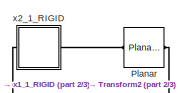
[diagram: root canvas - part 1/3, top left region]
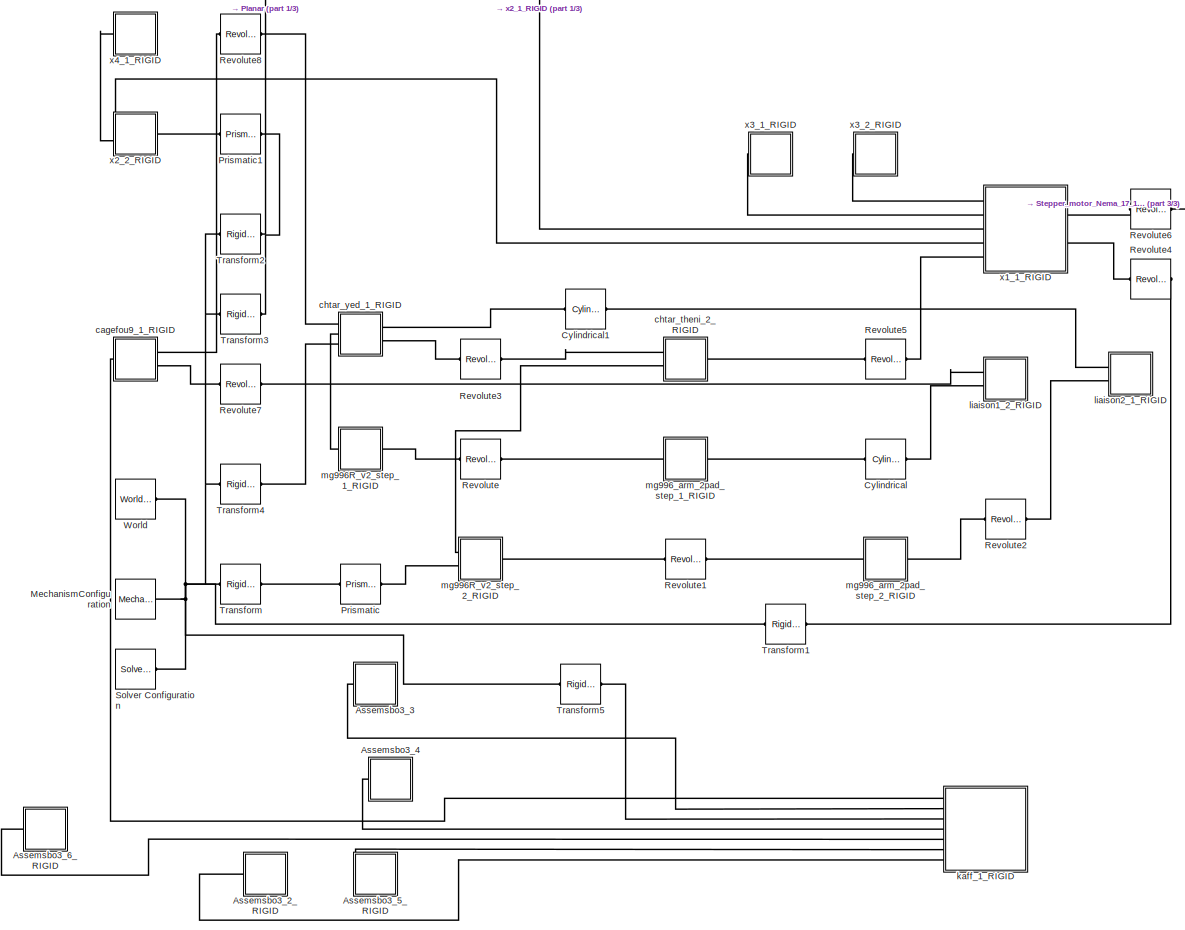
[diagram: root canvas - part 2/3, most of the canvas]
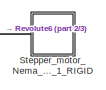
[diagram: root canvas - part 3/3, top right region]
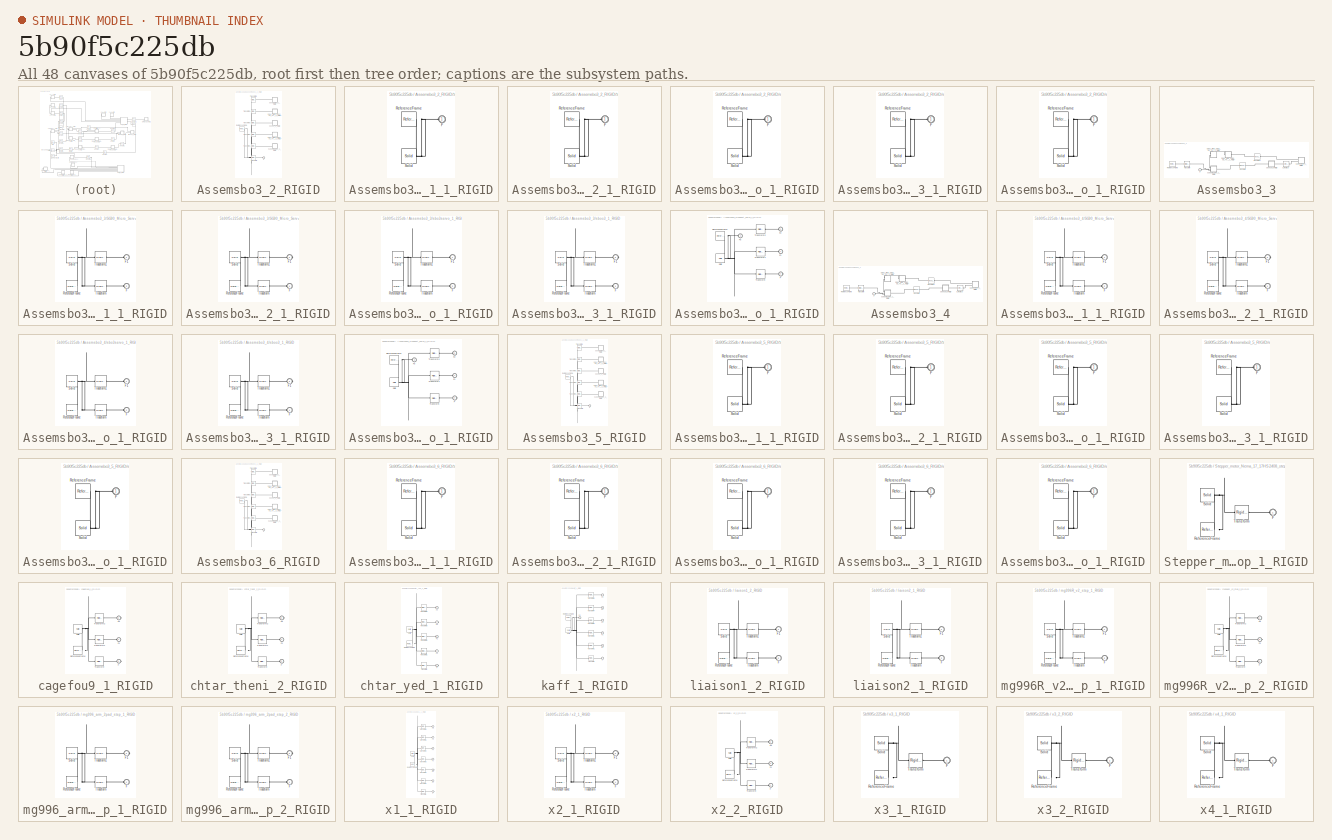
[diagram: thumbnail index - all 48 canvases of the model, root first then tree order]
MODEL slx_5b90f5c225db
KIND model
CONFIG AbsTol = auto
CONFIG EnableMultiTasking = off
CONFIG FixedStep = auto
CONFIG MaxStep = auto
CONFIG MinStep = auto
CONFIG RelTol = 1e-3
CONFIG SampleTimeConstraint = Unconstrained
CONFIG Solver = VariableStepAuto
CONFIG SolverName = VariableStepAuto
CONFIG StartTime = 0.0
CONFIG StopTime = 10.0
WORKSPACE source: external: MATLAB File  (data not in archive)
BLOCK [SubSystem] Assemsbo3_2_RIGID
  Ports = [0, 0, 0, 0, 0, 1]
  RequestExecContextInheritance = off
BLOCK [PMIOPort] Assemsbo3_2_RIGID/F
  Side = Left
BLOCK [Reference] Assemsbo3_2_RIGID/ReferenceFrame  REF=sm_lib/Frames and
Transforms/Reference
Frame
  Ports = [0, 0, 0, 0, 0, 0, 1]
  SourceBlock = sm_lib/Frames and\nTransforms/Reference\nFrame
  SourceProductBaseCode = MS
  SourceProductName = Simscape Multibody
  SourceType = Reference\nFrame
BLOCK [SubSystem] Assemsbo3_2_RIGID/SG90_Micro_Servo_9g_Tower_Pro_1_1_RIGID
  Ports = [0, 0, 0, 0, 0, 1]
  RequestExecContextInheritance = off
BLOCK [PMIOPort] Assemsbo3_2_RIGID/SG90_Micro_Servo_9g_Tower_Pro_1_1_RIGID/F
  Side = Left
BLOCK [Reference] Assemsbo3_2_RIGID/SG90_Micro_Servo_9g_Tower_Pro_1_1_RIGID/ReferenceFrame  REF=sm_lib/Frames and
Transforms/Reference
Frame
  Ports = [0, 0, 0, 0, 0, 0, 1]
  SourceBlock = sm_lib/Frames and\nTransforms/Reference\nFrame
  SourceProductBaseCode = MS
  SourceProductName = Simscape Multibody
  SourceType = Reference\nFrame
BLOCK [Reference] Assemsbo3_2_RIGID/SG90_Micro_Servo_9g_Tower_Pro_1_1_RIGID/Solid  REF=sm_lib/Body Elements/Solid
  Ports = [0, 0, 0, 0, 0, 0, 1]
  SourceBlock = sm_lib/Body Elements/Solid
  SourceProductBaseCode = MS
  SourceProductName = Simscape Multibody
  SourceType = Solid
BLOCK [SubSystem] Assemsbo3_2_RIGID/SG90_Micro_Servo_9g_Tower_Pro_2_1_RIGID
  Ports = [0, 0, 0, 0, 0, 1]
  RequestExecContextInheritance = off
BLOCK [PMIOPort] Assemsbo3_2_RIGID/SG90_Micro_Servo_9g_Tower_Pro_2_1_RIGID/F
  Side = Left
BLOCK [Reference] Assemsbo3_2_RIGID/SG90_Micro_Servo_9g_Tower_Pro_2_1_RIGID/ReferenceFrame  REF=sm_lib/Frames and
Transforms/Reference
Frame
  Ports = [0, 0, 0, 0, 0, 0, 1]
  SourceBlock = sm_lib/Frames and\nTransforms/Reference\nFrame
  SourceProductBaseCode = MS
  SourceProductName = Simscape Multibody
  SourceType = Reference\nFrame
BLOCK [Reference] Assemsbo3_2_RIGID/SG90_Micro_Servo_9g_Tower_Pro_2_1_RIGID/Solid  REF=sm_lib/Body Elements/Solid
  Ports = [0, 0, 0, 0, 0, 0, 1]
  SourceBlock = sm_lib/Body Elements/Solid
  SourceProductBaseCode = MS
  SourceProductName = Simscape Multibody
  SourceType = Solid
BLOCK [Reference] Assemsbo3_2_RIGID/Transform  REF=sm_lib/Frames and
Transforms/Rigid
Transform
  Ports = [0, 0, 0, 0, 0, 1, 1]
  SourceBlock = sm_lib/Frames and\nTransforms/Rigid\nTransform
  SourceProductBaseCode = MS
  SourceProductName = Simscape Multibody
  SourceType = Rigid\nTransform
BLOCK [Reference] Assemsbo3_2_RIGID/Transform1  REF=sm_lib/Frames and
Transforms/Rigid
Transform
  Ports = [0, 0, 0, 0, 0, 1, 1]
  SourceBlock = sm_lib/Frames and\nTransforms/Rigid\nTransform
  SourceProductBaseCode = MS
  SourceProductName = Simscape Multibody
  SourceType = Rigid\nTransform
BLOCK [Reference] Assemsbo3_2_RIGID/Transform2  REF=sm_lib/Frames and
Transforms/Rigid
Transform
  Ports = [0, 0, 0, 0, 0, 1, 1]
  SourceBlock = sm_lib/Frames and\nTransforms/Rigid\nTransform
  SourceProductBaseCode = MS
  SourceProductName = Simscape Multibody
  SourceType = Rigid\nTransform
BLOCK [Reference] Assemsbo3_2_RIGID/Transform3  REF=sm_lib/Frames and
Transforms/Rigid
Transform
  Ports = [0, 0, 0, 0, 0, 1, 1]
  SourceBlock = sm_lib/Frames and\nTransforms/Rigid\nTransform
  SourceProductBaseCode = MS
  SourceProductName = Simscape Multibody
  SourceType = Rigid\nTransform
BLOCK [Reference] Assemsbo3_2_RIGID/Transform4  REF=sm_lib/Frames and
Transforms/Rigid
Transform
  Ports = [0, 0, 0, 0, 0, 1, 1]
  SourceBlock = sm_lib/Frames and\nTransforms/Rigid\nTransform
  SourceProductBaseCode = MS
  SourceProductName = Simscape Multibody
  SourceType = Rigid\nTransform
BLOCK [Reference] Assemsbo3_2_RIGID/Transform5  REF=sm_lib/Frames and
Transforms/Rigid
Transform
  Ports = [0, 0, 0, 0, 0, 1, 1]
  SourceBlock = sm_lib/Frames and\nTransforms/Rigid\nTransform
  SourceProductBaseCode = MS
  SourceProductName = Simscape Multibody
  SourceType = Rigid\nTransform
BLOCK [SubSystem] Assemsbo3_2_RIGID/sbo3servo_1_RIGID
  Ports = [0, 0, 0, 0, 0, 1]
  RequestExecContextInheritance = off
BLOCK [PMIOPort] Assemsbo3_2_RIGID/sbo3servo_1_RIGID/F
  Side = Left
BLOCK [Reference] Assemsbo3_2_RIGID/sbo3servo_1_RIGID/ReferenceFrame  REF=sm_lib/Frames and
Transforms/Reference
Frame
  Ports = [0, 0, 0, 0, 0, 0, 1]
  SourceBlock = sm_lib/Frames and\nTransforms/Reference\nFrame
  SourceProductBaseCode = MS
  SourceProductName = Simscape Multibody
  SourceType = Reference\nFrame
BLOCK [Reference] Assemsbo3_2_RIGID/sbo3servo_1_RIGID/Solid  REF=sm_lib/Body Elements/Solid
  Ports = [0, 0, 0, 0, 0, 0, 1]
  SourceBlock = sm_lib/Body Elements/Solid
  SourceProductBaseCode = MS
  SourceProductName = Simscape Multibody
  SourceType = Solid
BLOCK [SubSystem] Assemsbo3_2_RIGID/sboo3_1_RIGID
  Ports = [0, 0, 0, 0, 0, 1]
  RequestExecContextInheritance = off
BLOCK [PMIOPort] Assemsbo3_2_RIGID/sboo3_1_RIGID/F
  Side = Left
BLOCK [Reference] Assemsbo3_2_RIGID/sboo3_1_RIGID/ReferenceFrame  REF=sm_lib/Frames and
Transforms/Reference
Frame
  Ports = [0, 0, 0, 0, 0, 0, 1]
  SourceBlock = sm_lib/Frames and\nTransforms/Reference\nFrame
  SourceProductBaseCode = MS
  SourceProductName = Simscape Multibody
  SourceType = Reference\nFrame
BLOCK [Reference] Assemsbo3_2_RIGID/sboo3_1_RIGID/Solid  REF=sm_lib/Body Elements/Solid
  Ports = [0, 0, 0, 0, 0, 0, 1]
  SourceBlock = sm_lib/Body Elements/Solid
  SourceProductBaseCode = MS
  SourceProductName = Simscape Multibody
  SourceType = Solid
BLOCK [SubSystem] Assemsbo3_2_RIGID/support_servo_1_RIGID
  Ports = [0, 0, 0, 0, 0, 1]
  RequestExecContextInheritance = off
BLOCK [PMIOPort] Assemsbo3_2_RIGID/support_servo_1_RIGID/F
  Side = Left
BLOCK [Reference] Assemsbo3_2_RIGID/support_servo_1_RIGID/ReferenceFrame  REF=sm_lib/Frames and
Transforms/Reference
Frame
  Ports = [0, 0, 0, 0, 0, 0, 1]
  SourceBlock = sm_lib/Frames and\nTransforms/Reference\nFrame
  SourceProductBaseCode = MS
  SourceProductName = Simscape Multibody
  SourceType = Reference\nFrame
BLOCK [Reference] Assemsbo3_2_RIGID/support_servo_1_RIGID/Solid  REF=sm_lib/Body Elements/Solid
  Ports = [0, 0, 0, 0, 0, 0, 1]
  SourceBlock = sm_lib/Body Elements/Solid
  SourceProductBaseCode = MS
  SourceProductName = Simscape Multibody
  SourceType = Solid
BLOCK [SubSystem] Assemsbo3_3
  Ports = [0, 0, 0, 0, 0, 1]
  RequestExecContextInheritance = off
BLOCK [Reference] Assemsbo3_3/Cylindrical  REF=sm_lib/Joints/Cylindrical
Joint
  Ports = [0, 0, 0, 0, 0, 1, 1]
  SourceBlock = sm_lib/Joints/Cylindrical\nJoint
  SourceProductBaseCode = MS
  SourceProductName = Simscape Multibody
  SourceType = Cylindrical\nJoint
BLOCK [PMIOPort] Assemsbo3_3/F
  Side = Left
BLOCK [Reference] Assemsbo3_3/ReferenceFrame  REF=sm_lib/Frames and
Transforms/Reference
Frame
  Ports = [0, 0, 0, 0, 0, 0, 1]
  SourceBlock = sm_lib/Frames and\nTransforms/Reference\nFrame
  SourceProductBaseCode = MS
  SourceProductName = Simscape Multibody
  SourceType = Reference\nFrame
BLOCK [Reference] Assemsbo3_3/Revolute  REF=sm_lib/Joints/Revolute Joint
  Ports = [0, 0, 0, 0, 0, 1, 1]
  SourceBlock = sm_lib/Joints/Revolute Joint
  SourceProductBaseCode = MS
  SourceProductName = Simscape Multibody
  SourceType = Revolute Joint
BLOCK [Reference] Assemsbo3_3/Revolute1  REF=sm_lib/Joints/Revolute Joint
  Ports = [0, 0, 0, 0, 0, 1, 1]
  SourceBlock = sm_lib/Joints/Revolute Joint
  SourceProductBaseCode = MS
  SourceProductName = Simscape Multibody
  SourceType = Revolute Joint
BLOCK [SubSystem] Assemsbo3_3/SG90_Micro_Servo_9g_Tower_Pro_1_1_RIGID
  Ports = [0, 0, 0, 0, 0, 2]
  RequestExecContextInheritance = off
BLOCK [PMIOPort] Assemsbo3_3/SG90_Micro_Servo_9g_Tower_Pro_1_1_RIGID/F
  Port = 2
  Side = Left
BLOCK [PMIOPort] Assemsbo3_3/SG90_Micro_Servo_9g_Tower_Pro_1_1_RIGID/F1
  Side = Left
BLOCK [Reference] Assemsbo3_3/SG90_Micro_Servo_9g_Tower_Pro_1_1_RIGID/ReferenceFrame  REF=sm_lib/Frames and
Transforms/Reference
Frame
  Ports = [0, 0, 0, 0, 0, 0, 1]
  SourceBlock = sm_lib/Frames and\nTransforms/Reference\nFrame
  SourceProductBaseCode = MS
  SourceProductName = Simscape Multibody
  SourceType = Reference\nFrame
BLOCK [Reference] Assemsbo3_3/SG90_Micro_Servo_9g_Tower_Pro_1_1_RIGID/Solid  REF=sm_lib/Body Elements/Solid
  Ports = [0, 0, 0, 0, 0, 0, 1]
  SourceBlock = sm_lib/Body Elements/Solid
  SourceProductBaseCode = MS
  SourceProductName = Simscape Multibody
  SourceType = Solid
BLOCK [Reference] Assemsbo3_3/SG90_Micro_Servo_9g_Tower_Pro_1_1_RIGID/Transform  REF=sm_lib/Frames and
Transforms/Rigid
Transform
  Ports = [0, 0, 0, 0, 0, 1, 1]
  SourceBlock = sm_lib/Frames and\nTransforms/Rigid\nTransform
  SourceProductBaseCode = MS
  SourceProductName = Simscape Multibody
  SourceType = Rigid\nTransform
BLOCK [Reference] Assemsbo3_3/SG90_Micro_Servo_9g_Tower_Pro_1_1_RIGID/Transform1  REF=sm_lib/Frames and
Transforms/Rigid
Transform
  Ports = [0, 0, 0, 0, 0, 1, 1]
  SourceBlock = sm_lib/Frames and\nTransforms/Rigid\nTransform
  SourceProductBaseCode = MS
  SourceProductName = Simscape Multibody
  SourceType = Rigid\nTransform
BLOCK [SubSystem] Assemsbo3_3/SG90_Micro_Servo_9g_Tower_Pro_2_1_RIGID
  Ports = [0, 0, 0, 0, 0, 1, 1]
  RequestExecContextInheritance = off
BLOCK [PMIOPort] Assemsbo3_3/SG90_Micro_Servo_9g_Tower_Pro_2_1_RIGID/F
  Side = Left
BLOCK [PMIOPort] Assemsbo3_3/SG90_Micro_Servo_9g_Tower_Pro_2_1_RIGID/F1
  Port = 2
  Side = Right
BLOCK [Reference] Assemsbo3_3/SG90_Micro_Servo_9g_Tower_Pro_2_1_RIGID/ReferenceFrame  REF=sm_lib/Frames and
Transforms/Reference
Frame
  Ports = [0, 0, 0, 0, 0, 0, 1]
  SourceBlock = sm_lib/Frames and\nTransforms/Reference\nFrame
  SourceProductBaseCode = MS
  SourceProductName = Simscape Multibody
  SourceType = Reference\nFrame
BLOCK [Reference] Assemsbo3_3/SG90_Micro_Servo_9g_Tower_Pro_2_1_RIGID/Solid  REF=sm_lib/Body Elements/Solid
  Ports = [0, 0, 0, 0, 0, 0, 1]
  SourceBlock = sm_lib/Body Elements/Solid
  SourceProductBaseCode = MS
  SourceProductName = Simscape Multibody
  SourceType = Solid
BLOCK [Reference] Assemsbo3_3/SG90_Micro_Servo_9g_Tower_Pro_2_1_RIGID/Transform  REF=sm_lib/Frames and
Transforms/Rigid
Transform
  Ports = [0, 0, 0, 0, 0, 1, 1]
  SourceBlock = sm_lib/Frames and\nTransforms/Rigid\nTransform
  SourceProductBaseCode = MS
  SourceProductName = Simscape Multibody
  SourceType = Rigid\nTransform
BLOCK [Reference] Assemsbo3_3/SG90_Micro_Servo_9g_Tower_Pro_2_1_RIGID/Transform1  REF=sm_lib/Frames and
Transforms/Rigid
Transform
  Ports = [0, 0, 0, 0, 0, 1, 1]
  SourceBlock = sm_lib/Frames and\nTransforms/Rigid\nTransform
  SourceProductBaseCode = MS
  SourceProductName = Simscape Multibody
  SourceType = Rigid\nTransform
BLOCK [Reference] Assemsbo3_3/Transform  REF=sm_lib/Frames and
Transforms/Rigid
Transform
  Ports = [0, 0, 0, 0, 0, 1, 1]
  SourceBlock = sm_lib/Frames and\nTransforms/Rigid\nTransform
  SourceProductBaseCode = MS
  SourceProductName = Simscape Multibody
  SourceType = Rigid\nTransform
BLOCK [SubSystem] Assemsbo3_3/sbo3servo_1_RIGID
  Ports = [0, 0, 0, 0, 0, 2]
  RequestExecContextInheritance = off
BLOCK [PMIOPort] Assemsbo3_3/sbo3servo_1_RIGID/F
  Port = 2
  Side = Left
BLOCK [PMIOPort] Assemsbo3_3/sbo3servo_1_RIGID/F1
  Side = Left
BLOCK [Reference] Assemsbo3_3/sbo3servo_1_RIGID/ReferenceFrame  REF=sm_lib/Frames and
Transforms/Reference
Frame
  Ports = [0, 0, 0, 0, 0, 0, 1]
  SourceBlock = sm_lib/Frames and\nTransforms/Reference\nFrame
  SourceProductBaseCode = MS
  SourceProductName = Simscape Multibody
  SourceType = Reference\nFrame
BLOCK [Reference] Assemsbo3_3/sbo3servo_1_RIGID/Solid  REF=sm_lib/Body Elements/Solid
  Ports = [0, 0, 0, 0, 0, 0, 1]
  SourceBlock = sm_lib/Body Elements/Solid
  SourceProductBaseCode = MS
  SourceProductName = Simscape Multibody
  SourceType = Solid
BLOCK [Reference] Assemsbo3_3/sbo3servo_1_RIGID/Transform  REF=sm_lib/Frames and
Transforms/Rigid
Transform
  Ports = [0, 0, 0, 0, 0, 1, 1]
  SourceBlock = sm_lib/Frames and\nTransforms/Rigid\nTransform
  SourceProductBaseCode = MS
  SourceProductName = Simscape Multibody
  SourceType = Rigid\nTransform
BLOCK [Reference] Assemsbo3_3/sbo3servo_1_RIGID/Transform1  REF=sm_lib/Frames and
Transforms/Rigid
Transform
  Ports = [0, 0, 0, 0, 0, 1, 1]
  SourceBlock = sm_lib/Frames and\nTransforms/Rigid\nTransform
  SourceProductBaseCode = MS
  SourceProductName = Simscape Multibody
  SourceType = Rigid\nTransform
BLOCK [SubSystem] Assemsbo3_3/sboo3_1_RIGID
  Ports = [0, 0, 0, 0, 0, 1, 1]
  RequestExecContextInheritance = off
BLOCK [PMIOPort] Assemsbo3_3/sboo3_1_RIGID/F
  Side = Left
BLOCK [PMIOPort] Assemsbo3_3/sboo3_1_RIGID/F1
  Port = 2
  Side = Right
BLOCK [Reference] Assemsbo3_3/sboo3_1_RIGID/ReferenceFrame  REF=sm_lib/Frames and
Transforms/Reference
Frame
  Ports = [0, 0, 0, 0, 0, 0, 1]
  SourceBlock = sm_lib/Frames and\nTransforms/Reference\nFrame
  SourceProductBaseCode = MS
  SourceProductName = Simscape Multibody
  SourceType = Reference\nFrame
BLOCK [Reference] Assemsbo3_3/sboo3_1_RIGID/Solid  REF=sm_lib/Body Elements/Solid
  Ports = [0, 0, 0, 0, 0, 0, 1]
  SourceBlock = sm_lib/Body Elements/Solid
  SourceProductBaseCode = MS
  SourceProductName = Simscape Multibody
  SourceType = Solid
BLOCK [Reference] Assemsbo3_3/sboo3_1_RIGID/Transform  REF=sm_lib/Frames and
Transforms/Rigid
Transform
  Ports = [0, 0, 0, 0, 0, 1, 1]
  SourceBlock = sm_lib/Frames and\nTransforms/Rigid\nTransform
  SourceProductBaseCode = MS
  SourceProductName = Simscape Multibody
  SourceType = Rigid\nTransform
BLOCK [Reference] Assemsbo3_3/sboo3_1_RIGID/Transform1  REF=sm_lib/Frames and
Transforms/Rigid
Transform
  Ports = [0, 0, 0, 0, 0, 1, 1]
  SourceBlock = sm_lib/Frames and\nTransforms/Rigid\nTransform
  SourceProductBaseCode = MS
  SourceProductName = Simscape Multibody
  SourceType = Rigid\nTransform
BLOCK [SubSystem] Assemsbo3_3/support_servo_1_RIGID
  Ports = [0, 0, 0, 0, 0, 3, 1]
  RequestExecContextInheritance = off
BLOCK [PMIOPort] Assemsbo3_3/support_servo_1_RIGID/F
  Port = 4
  Side = Right
BLOCK [PMIOPort] Assemsbo3_3/support_servo_1_RIGID/F1
  Side = Left
BLOCK [PMIOPort] Assemsbo3_3/support_servo_1_RIGID/F2
  Port = 3
  Side = Left
BLOCK [PMIOPort] Assemsbo3_3/support_servo_1_RIGID/F3
  Port = 2
  Side = Left
BLOCK [Reference] Assemsbo3_3/support_servo_1_RIGID/ReferenceFrame  REF=sm_lib/Frames and
Transforms/Reference
Frame
  Ports = [0, 0, 0, 0, 0, 0, 1]
  SourceBlock = sm_lib/Frames and\nTransforms/Reference\nFrame
  SourceProductBaseCode = MS
  SourceProductName = Simscape Multibody
  SourceType = Reference\nFrame
BLOCK [Reference] Assemsbo3_3/support_servo_1_RIGID/Solid  REF=sm_lib/Body Elements/Solid
  Ports = [0, 0, 0, 0, 0, 0, 1]
  SourceBlock = sm_lib/Body Elements/Solid
  SourceProductBaseCode = MS
  SourceProductName = Simscape Multibody
  SourceType = Solid
BLOCK [Reference] Assemsbo3_3/support_servo_1_RIGID/Transform  REF=sm_lib/Frames and
Transforms/Rigid
Transform
  Ports = [0, 0, 0, 0, 0, 1, 1]
  SourceBlock = sm_lib/Frames and\nTransforms/Rigid\nTransform
  SourceProductBaseCode = MS
  SourceProductName = Simscape Multibody
  SourceType = Rigid\nTransform
BLOCK [Reference] Assemsbo3_3/support_servo_1_RIGID/Transform1  REF=sm_lib/Frames and
Transforms/Rigid
Transform
  Ports = [0, 0, 0, 0, 0, 1, 1]
  SourceBlock = sm_lib/Frames and\nTransforms/Rigid\nTransform
  SourceProductBaseCode = MS
  SourceProductName = Simscape Multibody
  SourceType = Rigid\nTransform
BLOCK [Reference] Assemsbo3_3/support_servo_1_RIGID/Transform2  REF=sm_lib/Frames and
Transforms/Rigid
Transform
  Ports = [0, 0, 0, 0, 0, 1, 1]
  SourceBlock = sm_lib/Frames and\nTransforms/Rigid\nTransform
  SourceProductBaseCode = MS
  SourceProductName = Simscape Multibody
  SourceType = Rigid\nTransform
BLOCK [SubSystem] Assemsbo3_4
  Ports = [0, 0, 0, 0, 0, 1]
  RequestExecContextInheritance = off
BLOCK [Reference] Assemsbo3_4/Cylindrical  REF=sm_lib/Joints/Cylindrical
Joint
  Ports = [0, 0, 0, 0, 0, 1, 1]
  SourceBlock = sm_lib/Joints/Cylindrical\nJoint
  SourceProductBaseCode = MS
  SourceProductName = Simscape Multibody
  SourceType = Cylindrical\nJoint
BLOCK [PMIOPort] Assemsbo3_4/F
  Side = Left
BLOCK [Reference] Assemsbo3_4/ReferenceFrame  REF=sm_lib/Frames and
Transforms/Reference
Frame
  Ports = [0, 0, 0, 0, 0, 0, 1]
  SourceBlock = sm_lib/Frames and\nTransforms/Reference\nFrame
  SourceProductBaseCode = MS
  SourceProductName = Simscape Multibody
  SourceType = Reference\nFrame
BLOCK [Reference] Assemsbo3_4/Revolute  REF=sm_lib/Joints/Revolute Joint
  Ports = [0, 0, 0, 0, 0, 1, 1]
  SourceBlock = sm_lib/Joints/Revolute Joint
  SourceProductBaseCode = MS
  SourceProductName = Simscape Multibody
  SourceType = Revolute Joint
BLOCK [Reference] Assemsbo3_4/Revolute1  REF=sm_lib/Joints/Revolute Joint
  Ports = [0, 0, 0, 0, 0, 1, 1]
  SourceBlock = sm_lib/Joints/Revolute Joint
  SourceProductBaseCode = MS
  SourceProductName = Simscape Multibody
  SourceType = Revolute Joint
BLOCK [SubSystem] Assemsbo3_4/SG90_Micro_Servo_9g_Tower_Pro_1_1_RIGID
  Ports = [0, 0, 0, 0, 0, 2]
  RequestExecContextInheritance = off
BLOCK [PMIOPort] Assemsbo3_4/SG90_Micro_Servo_9g_Tower_Pro_1_1_RIGID/F
  Port = 2
  Side = Left
BLOCK [PMIOPort] Assemsbo3_4/SG90_Micro_Servo_9g_Tower_Pro_1_1_RIGID/F1
  Side = Left
BLOCK [Reference] Assemsbo3_4/SG90_Micro_Servo_9g_Tower_Pro_1_1_RIGID/ReferenceFrame  REF=sm_lib/Frames and
Transforms/Reference
Frame
  Ports = [0, 0, 0, 0, 0, 0, 1]
  SourceBlock = sm_lib/Frames and\nTransforms/Reference\nFrame
  SourceProductBaseCode = MS
  SourceProductName = Simscape Multibody
  SourceType = Reference\nFrame
BLOCK [Reference] Assemsbo3_4/SG90_Micro_Servo_9g_Tower_Pro_1_1_RIGID/Solid  REF=sm_lib/Body Elements/Solid
  Ports = [0, 0, 0, 0, 0, 0, 1]
  SourceBlock = sm_lib/Body Elements/Solid
  SourceProductBaseCode = MS
  SourceProductName = Simscape Multibody
  SourceType = Solid
BLOCK [Reference] Assemsbo3_4/SG90_Micro_Servo_9g_Tower_Pro_1_1_RIGID/Transform  REF=sm_lib/Frames and
Transforms/Rigid
Transform
  Ports = [0, 0, 0, 0, 0, 1, 1]
  SourceBlock = sm_lib/Frames and\nTransforms/Rigid\nTransform
  SourceProductBaseCode = MS
  SourceProductName = Simscape Multibody
  SourceType = Rigid\nTransform
BLOCK [Reference] Assemsbo3_4/SG90_Micro_Servo_9g_Tower_Pro_1_1_RIGID/Transform1  REF=sm_lib/Frames and
Transforms/Rigid
Transform
  Ports = [0, 0, 0, 0, 0, 1, 1]
  SourceBlock = sm_lib/Frames and\nTransforms/Rigid\nTransform
  SourceProductBaseCode = MS
  SourceProductName = Simscape Multibody
  SourceType = Rigid\nTransform
BLOCK [SubSystem] Assemsbo3_4/SG90_Micro_Servo_9g_Tower_Pro_2_1_RIGID
  Ports = [0, 0, 0, 0, 0, 1, 1]
  RequestExecContextInheritance = off
BLOCK [PMIOPort] Assemsbo3_4/SG90_Micro_Servo_9g_Tower_Pro_2_1_RIGID/F
  Side = Left
BLOCK [PMIOPort] Assemsbo3_4/SG90_Micro_Servo_9g_Tower_Pro_2_1_RIGID/F1
  Port = 2
  Side = Right
BLOCK [Reference] Assemsbo3_4/SG90_Micro_Servo_9g_Tower_Pro_2_1_RIGID/ReferenceFrame  REF=sm_lib/Frames and
Transforms/Reference
Frame
  Ports = [0, 0, 0, 0, 0, 0, 1]
  SourceBlock = sm_lib/Frames and\nTransforms/Reference\nFrame
  SourceProductBaseCode = MS
  SourceProductName = Simscape Multibody
  SourceType = Reference\nFrame
BLOCK [Reference] Assemsbo3_4/SG90_Micro_Servo_9g_Tower_Pro_2_1_RIGID/Solid  REF=sm_lib/Body Elements/Solid
  Ports = [0, 0, 0, 0, 0, 0, 1]
  SourceBlock = sm_lib/Body Elements/Solid
  SourceProductBaseCode = MS
  SourceProductName = Simscape Multibody
  SourceType = Solid
BLOCK [Reference] Assemsbo3_4/SG90_Micro_Servo_9g_Tower_Pro_2_1_RIGID/Transform  REF=sm_lib/Frames and
Transforms/Rigid
Transform
  Ports = [0, 0, 0, 0, 0, 1, 1]
  SourceBlock = sm_lib/Frames and\nTransforms/Rigid\nTransform
  SourceProductBaseCode = MS
  SourceProductName = Simscape Multibody
  SourceType = Rigid\nTransform
BLOCK [Reference] Assemsbo3_4/SG90_Micro_Servo_9g_Tower_Pro_2_1_RIGID/Transform1  REF=sm_lib/Frames and
Transforms/Rigid
Transform
  Ports = [0, 0, 0, 0, 0, 1, 1]
  SourceBlock = sm_lib/Frames and\nTransforms/Rigid\nTransform
  SourceProductBaseCode = MS
  SourceProductName = Simscape Multibody
  SourceType = Rigid\nTransform
BLOCK [Reference] Assemsbo3_4/Transform  REF=sm_lib/Frames and
Transforms/Rigid
Transform
  Ports = [0, 0, 0, 0, 0, 1, 1]
  SourceBlock = sm_lib/Frames and\nTransforms/Rigid\nTransform
  SourceProductBaseCode = MS
  SourceProductName = Simscape Multibody
  SourceType = Rigid\nTransform
BLOCK [SubSystem] Assemsbo3_4/sbo3servo_1_RIGID
  Ports = [0, 0, 0, 0, 0, 2]
  RequestExecContextInheritance = off
BLOCK [PMIOPort] Assemsbo3_4/sbo3servo_1_RIGID/F
  Port = 2
  Side = Left
BLOCK [PMIOPort] Assemsbo3_4/sbo3servo_1_RIGID/F1
  Side = Left
BLOCK [Reference] Assemsbo3_4/sbo3servo_1_RIGID/ReferenceFrame  REF=sm_lib/Frames and
Transforms/Reference
Frame
  Ports = [0, 0, 0, 0, 0, 0, 1]
  SourceBlock = sm_lib/Frames and\nTransforms/Reference\nFrame
  SourceProductBaseCode = MS
  SourceProductName = Simscape Multibody
  SourceType = Reference\nFrame
BLOCK [Reference] Assemsbo3_4/sbo3servo_1_RIGID/Solid  REF=sm_lib/Body Elements/Solid
  Ports = [0, 0, 0, 0, 0, 0, 1]
  SourceBlock = sm_lib/Body Elements/Solid
  SourceProductBaseCode = MS
  SourceProductName = Simscape Multibody
  SourceType = Solid
BLOCK [Reference] Assemsbo3_4/sbo3servo_1_RIGID/Transform  REF=sm_lib/Frames and
Transforms/Rigid
Transform
  Ports = [0, 0, 0, 0, 0, 1, 1]
  SourceBlock = sm_lib/Frames and\nTransforms/Rigid\nTransform
  SourceProductBaseCode = MS
  SourceProductName = Simscape Multibody
  SourceType = Rigid\nTransform
BLOCK [Reference] Assemsbo3_4/sbo3servo_1_RIGID/Transform1  REF=sm_lib/Frames and
Transforms/Rigid
Transform
  Ports = [0, 0, 0, 0, 0, 1, 1]
  SourceBlock = sm_lib/Frames and\nTransforms/Rigid\nTransform
  SourceProductBaseCode = MS
  SourceProductName = Simscape Multibody
  SourceType = Rigid\nTransform
BLOCK [SubSystem] Assemsbo3_4/sboo3_1_RIGID
  Ports = [0, 0, 0, 0, 0, 1, 1]
  RequestExecContextInheritance = off
BLOCK [PMIOPort] Assemsbo3_4/sboo3_1_RIGID/F
  Side = Left
BLOCK [PMIOPort] Assemsbo3_4/sboo3_1_RIGID/F1
  Port = 2
  Side = Right
BLOCK [Reference] Assemsbo3_4/sboo3_1_RIGID/ReferenceFrame  REF=sm_lib/Frames and
Transforms/Reference
Frame
  Ports = [0, 0, 0, 0, 0, 0, 1]
  SourceBlock = sm_lib/Frames and\nTransforms/Reference\nFrame
  SourceProductBaseCode = MS
  SourceProductName = Simscape Multibody
  SourceType = Reference\nFrame
BLOCK [Reference] Assemsbo3_4/sboo3_1_RIGID/Solid  REF=sm_lib/Body Elements/Solid
  Ports = [0, 0, 0, 0, 0, 0, 1]
  SourceBlock = sm_lib/Body Elements/Solid
  SourceProductBaseCode = MS
  SourceProductName = Simscape Multibody
  SourceType = Solid
BLOCK [Reference] Assemsbo3_4/sboo3_1_RIGID/Transform  REF=sm_lib/Frames and
Transforms/Rigid
Transform
  Ports = [0, 0, 0, 0, 0, 1, 1]
  SourceBlock = sm_lib/Frames and\nTransforms/Rigid\nTransform
  SourceProductBaseCode = MS
  SourceProductName = Simscape Multibody
  SourceType = Rigid\nTransform
BLOCK [Reference] Assemsbo3_4/sboo3_1_RIGID/Transform1  REF=sm_lib/Frames and
Transforms/Rigid
Transform
  Ports = [0, 0, 0, 0, 0, 1, 1]
  SourceBlock = sm_lib/Frames and\nTransforms/Rigid\nTransform
  SourceProductBaseCode = MS
  SourceProductName = Simscape Multibody
  SourceType = Rigid\nTransform
BLOCK [SubSystem] Assemsbo3_4/support_servo_1_RIGID
  Ports = [0, 0, 0, 0, 0, 3, 1]
  RequestExecContextInheritance = off
BLOCK [PMIOPort] Assemsbo3_4/support_servo_1_RIGID/F
  Port = 4
  Side = Right
BLOCK [PMIOPort] Assemsbo3_4/support_servo_1_RIGID/F1
  Side = Left
BLOCK [PMIOPort] Assemsbo3_4/support_servo_1_RIGID/F2
  Port = 3
  Side = Left
BLOCK [PMIOPort] Assemsbo3_4/support_servo_1_RIGID/F3
  Port = 2
  Side = Left
BLOCK [Reference] Assemsbo3_4/support_servo_1_RIGID/ReferenceFrame  REF=sm_lib/Frames and
Transforms/Reference
Frame
  Ports = [0, 0, 0, 0, 0, 0, 1]
  SourceBlock = sm_lib/Frames and\nTransforms/Reference\nFrame
  SourceProductBaseCode = MS
  SourceProductName = Simscape Multibody
  SourceType = Reference\nFrame
BLOCK [Reference] Assemsbo3_4/support_servo_1_RIGID/Solid  REF=sm_lib/Body Elements/Solid
  Ports = [0, 0, 0, 0, 0, 0, 1]
  SourceBlock = sm_lib/Body Elements/Solid
  SourceProductBaseCode = MS
  SourceProductName = Simscape Multibody
  SourceType = Solid
BLOCK [Reference] Assemsbo3_4/support_servo_1_RIGID/Transform  REF=sm_lib/Frames and
Transforms/Rigid
Transform
  Ports = [0, 0, 0, 0, 0, 1, 1]
  SourceBlock = sm_lib/Frames and\nTransforms/Rigid\nTransform
  SourceProductBaseCode = MS
  SourceProductName = Simscape Multibody
  SourceType = Rigid\nTransform
BLOCK [Reference] Assemsbo3_4/support_servo_1_RIGID/Transform1  REF=sm_lib/Frames and
Transforms/Rigid
Transform
  Ports = [0, 0, 0, 0, 0, 1, 1]
  SourceBlock = sm_lib/Frames and\nTransforms/Rigid\nTransform
  SourceProductBaseCode = MS
  SourceProductName = Simscape Multibody
  SourceType = Rigid\nTransform
BLOCK [Reference] Assemsbo3_4/support_servo_1_RIGID/Transform2  REF=sm_lib/Frames and
Transforms/Rigid
Transform
  Ports = [0, 0, 0, 0, 0, 1, 1]
  SourceBlock = sm_lib/Frames and\nTransforms/Rigid\nTransform
  SourceProductBaseCode = MS
  SourceProductName = Simscape Multibody
  SourceType = Rigid\nTransform
BLOCK [SubSystem] Assemsbo3_5_RIGID
  Ports = [0, 0, 0, 0, 0, 1]
  RequestExecContextInheritance = off
BLOCK [PMIOPort] Assemsbo3_5_RIGID/F
  Side = Left
BLOCK [Reference] Assemsbo3_5_RIGID/ReferenceFrame  REF=sm_lib/Frames and
Transforms/Reference
Frame
  Ports = [0, 0, 0, 0, 0, 0, 1]
  SourceBlock = sm_lib/Frames and\nTransforms/Reference\nFrame
  SourceProductBaseCode = MS
  SourceProductName = Simscape Multibody
  SourceType = Reference\nFrame
BLOCK [SubSystem] Assemsbo3_5_RIGID/SG90_Micro_Servo_9g_Tower_Pro_1_1_RIGID
  Ports = [0, 0, 0, 0, 0, 1]
  RequestExecContextInheritance = off
BLOCK [PMIOPort] Assemsbo3_5_RIGID/SG90_Micro_Servo_9g_Tower_Pro_1_1_RIGID/F
  Side = Left
BLOCK [Reference] Assemsbo3_5_RIGID/SG90_Micro_Servo_9g_Tower_Pro_1_1_RIGID/ReferenceFrame  REF=sm_lib/Frames and
Transforms/Reference
Frame
  Ports = [0, 0, 0, 0, 0, 0, 1]
  SourceBlock = sm_lib/Frames and\nTransforms/Reference\nFrame
  SourceProductBaseCode = MS
  SourceProductName = Simscape Multibody
  SourceType = Reference\nFrame
BLOCK [Reference] Assemsbo3_5_RIGID/SG90_Micro_Servo_9g_Tower_Pro_1_1_RIGID/Solid  REF=sm_lib/Body Elements/Solid
  Ports = [0, 0, 0, 0, 0, 0, 1]
  SourceBlock = sm_lib/Body Elements/Solid
  SourceProductBaseCode = MS
  SourceProductName = Simscape Multibody
  SourceType = Solid
BLOCK [SubSystem] Assemsbo3_5_RIGID/SG90_Micro_Servo_9g_Tower_Pro_2_1_RIGID
  Ports = [0, 0, 0, 0, 0, 1]
  RequestExecContextInheritance = off
BLOCK [PMIOPort] Assemsbo3_5_RIGID/SG90_Micro_Servo_9g_Tower_Pro_2_1_RIGID/F
  Side = Left
BLOCK [Reference] Assemsbo3_5_RIGID/SG90_Micro_Servo_9g_Tower_Pro_2_1_RIGID/ReferenceFrame  REF=sm_lib/Frames and
Transforms/Reference
Frame
  Ports = [0, 0, 0, 0, 0, 0, 1]
  SourceBlock = sm_lib/Frames and\nTransforms/Reference\nFrame
  SourceProductBaseCode = MS
  SourceProductName = Simscape Multibody
  SourceType = Reference\nFrame
BLOCK [Reference] Assemsbo3_5_RIGID/SG90_Micro_Servo_9g_Tower_Pro_2_1_RIGID/Solid  REF=sm_lib/Body Elements/Solid
  Ports = [0, 0, 0, 0, 0, 0, 1]
  SourceBlock = sm_lib/Body Elements/Solid
  SourceProductBaseCode = MS
  SourceProductName = Simscape Multibody
  SourceType = Solid
BLOCK [Reference] Assemsbo3_5_RIGID/Transform  REF=sm_lib/Frames and
Transforms/Rigid
Transform
  Ports = [0, 0, 0, 0, 0, 1, 1]
  SourceBlock = sm_lib/Frames and\nTransforms/Rigid\nTransform
  SourceProductBaseCode = MS
  SourceProductName = Simscape Multibody
  SourceType = Rigid\nTransform
BLOCK [Reference] Assemsbo3_5_RIGID/Transform1  REF=sm_lib/Frames and
Transforms/Rigid
Transform
  Ports = [0, 0, 0, 0, 0, 1, 1]
  SourceBlock = sm_lib/Frames and\nTransforms/Rigid\nTransform
  SourceProductBaseCode = MS
  SourceProductName = Simscape Multibody
  SourceType = Rigid\nTransform
BLOCK [Reference] Assemsbo3_5_RIGID/Transform2  REF=sm_lib/Frames and
Transforms/Rigid
Transform
  Ports = [0, 0, 0, 0, 0, 1, 1]
  SourceBlock = sm_lib/Frames and\nTransforms/Rigid\nTransform
  SourceProductBaseCode = MS
  SourceProductName = Simscape Multibody
  SourceType = Rigid\nTransform
BLOCK [Reference] Assemsbo3_5_RIGID/Transform3  REF=sm_lib/Frames and
Transforms/Rigid
Transform
  Ports = [0, 0, 0, 0, 0, 1, 1]
  SourceBlock = sm_lib/Frames and\nTransforms/Rigid\nTransform
  SourceProductBaseCode = MS
  SourceProductName = Simscape Multibody
  SourceType = Rigid\nTransform
BLOCK [Reference] Assemsbo3_5_RIGID/Transform4  REF=sm_lib/Frames and
Transforms/Rigid
Transform
  Ports = [0, 0, 0, 0, 0, 1, 1]
  SourceBlock = sm_lib/Frames and\nTransforms/Rigid\nTransform
  SourceProductBaseCode = MS
  SourceProductName = Simscape Multibody
  SourceType = Rigid\nTransform
BLOCK [Reference] Assemsbo3_5_RIGID/Transform5  REF=sm_lib/Frames and
Transforms/Rigid
Transform
  Ports = [0, 0, 0, 0, 0, 1, 1]
  SourceBlock = sm_lib/Frames and\nTransforms/Rigid\nTransform
  SourceProductBaseCode = MS
  SourceProductName = Simscape Multibody
  SourceType = Rigid\nTransform
BLOCK [SubSystem] Assemsbo3_5_RIGID/sbo3servo_1_RIGID
  Ports = [0, 0, 0, 0, 0, 1]
  RequestExecContextInheritance = off
BLOCK [PMIOPort] Assemsbo3_5_RIGID/sbo3servo_1_RIGID/F
  Side = Left
BLOCK [Reference] Assemsbo3_5_RIGID/sbo3servo_1_RIGID/ReferenceFrame  REF=sm_lib/Frames and
Transforms/Reference
Frame
  Ports = [0, 0, 0, 0, 0, 0, 1]
  SourceBlock = sm_lib/Frames and\nTransforms/Reference\nFrame
  SourceProductBaseCode = MS
  SourceProductName = Simscape Multibody
  SourceType = Reference\nFrame
BLOCK [Reference] Assemsbo3_5_RIGID/sbo3servo_1_RIGID/Solid  REF=sm_lib/Body Elements/Solid
  Ports = [0, 0, 0, 0, 0, 0, 1]
  SourceBlock = sm_lib/Body Elements/Solid
  SourceProductBaseCode = MS
  SourceProductName = Simscape Multibody
  SourceType = Solid
BLOCK [SubSystem] Assemsbo3_5_RIGID/sboo3_1_RIGID
  Ports = [0, 0, 0, 0, 0, 1]
  RequestExecContextInheritance = off
BLOCK [PMIOPort] Assemsbo3_5_RIGID/sboo3_1_RIGID/F
  Side = Left
BLOCK [Reference] Assemsbo3_5_RIGID/sboo3_1_RIGID/ReferenceFrame  REF=sm_lib/Frames and
Transforms/Reference
Frame
  Ports = [0, 0, 0, 0, 0, 0, 1]
  SourceBlock = sm_lib/Frames and\nTransforms/Reference\nFrame
  SourceProductBaseCode = MS
  SourceProductName = Simscape Multibody
  SourceType = Reference\nFrame
BLOCK [Reference] Assemsbo3_5_RIGID/sboo3_1_RIGID/Solid  REF=sm_lib/Body Elements/Solid
  Ports = [0, 0, 0, 0, 0, 0, 1]
  SourceBlock = sm_lib/Body Elements/Solid
  SourceProductBaseCode = MS
  SourceProductName = Simscape Multibody
  SourceType = Solid
BLOCK [SubSystem] Assemsbo3_5_RIGID/support_servo_1_RIGID
  Ports = [0, 0, 0, 0, 0, 1]
  RequestExecContextInheritance = off
BLOCK [PMIOPort] Assemsbo3_5_RIGID/support_servo_1_RIGID/F
  Side = Left
BLOCK [Reference] Assemsbo3_5_RIGID/support_servo_1_RIGID/ReferenceFrame  REF=sm_lib/Frames and
Transforms/Reference
Frame
  Ports = [0, 0, 0, 0, 0, 0, 1]
  SourceBlock = sm_lib/Frames and\nTransforms/Reference\nFrame
  SourceProductBaseCode = MS
  SourceProductName = Simscape Multibody
  SourceType = Reference\nFrame
BLOCK [Reference] Assemsbo3_5_RIGID/support_servo_1_RIGID/Solid  REF=sm_lib/Body Elements/Solid
  Ports = [0, 0, 0, 0, 0, 0, 1]
  SourceBlock = sm_lib/Body Elements/Solid
  SourceProductBaseCode = MS
  SourceProductName = Simscape Multibody
  SourceType = Solid
BLOCK [SubSystem] Assemsbo3_6_RIGID
  Ports = [0, 0, 0, 0, 0, 1]
  RequestExecContextInheritance = off
BLOCK [PMIOPort] Assemsbo3_6_RIGID/F
  Side = Left
BLOCK [Reference] Assemsbo3_6_RIGID/ReferenceFrame  REF=sm_lib/Frames and
Transforms/Reference
Frame
  Ports = [0, 0, 0, 0, 0, 0, 1]
  SourceBlock = sm_lib/Frames and\nTransforms/Reference\nFrame
  SourceProductBaseCode = MS
  SourceProductName = Simscape Multibody
  SourceType = Reference\nFrame
BLOCK [SubSystem] Assemsbo3_6_RIGID/SG90_Micro_Servo_9g_Tower_Pro_1_1_RIGID
  Ports = [0, 0, 0, 0, 0, 1]
  RequestExecContextInheritance = off
BLOCK [PMIOPort] Assemsbo3_6_RIGID/SG90_Micro_Servo_9g_Tower_Pro_1_1_RIGID/F
  Side = Left
BLOCK [Reference] Assemsbo3_6_RIGID/SG90_Micro_Servo_9g_Tower_Pro_1_1_RIGID/ReferenceFrame  REF=sm_lib/Frames and
Transforms/Reference
Frame
  Ports = [0, 0, 0, 0, 0, 0, 1]
  SourceBlock = sm_lib/Frames and\nTransforms/Reference\nFrame
  SourceProductBaseCode = MS
  SourceProductName = Simscape Multibody
  SourceType = Reference\nFrame
BLOCK [Reference] Assemsbo3_6_RIGID/SG90_Micro_Servo_9g_Tower_Pro_1_1_RIGID/Solid  REF=sm_lib/Body Elements/Solid
  Ports = [0, 0, 0, 0, 0, 0, 1]
  SourceBlock = sm_lib/Body Elements/Solid
  SourceProductBaseCode = MS
  SourceProductName = Simscape Multibody
  SourceType = Solid
BLOCK [SubSystem] Assemsbo3_6_RIGID/SG90_Micro_Servo_9g_Tower_Pro_2_1_RIGID
  Ports = [0, 0, 0, 0, 0, 1]
  RequestExecContextInheritance = off
BLOCK [PMIOPort] Assemsbo3_6_RIGID/SG90_Micro_Servo_9g_Tower_Pro_2_1_RIGID/F
  Side = Left
BLOCK [Reference] Assemsbo3_6_RIGID/SG90_Micro_Servo_9g_Tower_Pro_2_1_RIGID/ReferenceFrame  REF=sm_lib/Frames and
Transforms/Reference
Frame
  Ports = [0, 0, 0, 0, 0, 0, 1]
  SourceBlock = sm_lib/Frames and\nTransforms/Reference\nFrame
  SourceProductBaseCode = MS
  SourceProductName = Simscape Multibody
  SourceType = Reference\nFrame
BLOCK [Reference] Assemsbo3_6_RIGID/SG90_Micro_Servo_9g_Tower_Pro_2_1_RIGID/Solid  REF=sm_lib/Body Elements/Solid
  Ports = [0, 0, 0, 0, 0, 0, 1]
  SourceBlock = sm_lib/Body Elements/Solid
  SourceProductBaseCode = MS
  SourceProductName = Simscape Multibody
  SourceType = Solid
BLOCK [Reference] Assemsbo3_6_RIGID/Transform  REF=sm_lib/Frames and
Transforms/Rigid
Transform
  Ports = [0, 0, 0, 0, 0, 1, 1]
  SourceBlock = sm_lib/Frames and\nTransforms/Rigid\nTransform
  SourceProductBaseCode = MS
  SourceProductName = Simscape Multibody
  SourceType = Rigid\nTransform
BLOCK [Reference] Assemsbo3_6_RIGID/Transform1  REF=sm_lib/Frames and
Transforms/Rigid
Transform
  Ports = [0, 0, 0, 0, 0, 1, 1]
  SourceBlock = sm_lib/Frames and\nTransforms/Rigid\nTransform
  SourceProductBaseCode = MS
  SourceProductName = Simscape Multibody
  SourceType = Rigid\nTransform
BLOCK [Reference] Assemsbo3_6_RIGID/Transform2  REF=sm_lib/Frames and
Transforms/Rigid
Transform
  Ports = [0, 0, 0, 0, 0, 1, 1]
  SourceBlock = sm_lib/Frames and\nTransforms/Rigid\nTransform
  SourceProductBaseCode = MS
  SourceProductName = Simscape Multibody
  SourceType = Rigid\nTransform
BLOCK [Reference] Assemsbo3_6_RIGID/Transform3  REF=sm_lib/Frames and
Transforms/Rigid
Transform
  Ports = [0, 0, 0, 0, 0, 1, 1]
  SourceBlock = sm_lib/Frames and\nTransforms/Rigid\nTransform
  SourceProductBaseCode = MS
  SourceProductName = Simscape Multibody
  SourceType = Rigid\nTransform
BLOCK [Reference] Assemsbo3_6_RIGID/Transform4  REF=sm_lib/Frames and
Transforms/Rigid
Transform
  Ports = [0, 0, 0, 0, 0, 1, 1]
  SourceBlock = sm_lib/Frames and\nTransforms/Rigid\nTransform
  SourceProductBaseCode = MS
  SourceProductName = Simscape Multibody
  SourceType = Rigid\nTransform
BLOCK [Reference] Assemsbo3_6_RIGID/Transform5  REF=sm_lib/Frames and
Transforms/Rigid
Transform
  Ports = [0, 0, 0, 0, 0, 1, 1]
  SourceBlock = sm_lib/Frames and\nTransforms/Rigid\nTransform
  SourceProductBaseCode = MS
  SourceProductName = Simscape Multibody
  SourceType = Rigid\nTransform
BLOCK [SubSystem] Assemsbo3_6_RIGID/sbo3servo_1_RIGID
  Ports = [0, 0, 0, 0, 0, 1]
  RequestExecContextInheritance = off
BLOCK [PMIOPort] Assemsbo3_6_RIGID/sbo3servo_1_RIGID/F
  Side = Left
BLOCK [Reference] Assemsbo3_6_RIGID/sbo3servo_1_RIGID/ReferenceFrame  REF=sm_lib/Frames and
Transforms/Reference
Frame
  Ports = [0, 0, 0, 0, 0, 0, 1]
  SourceBlock = sm_lib/Frames and\nTransforms/Reference\nFrame
  SourceProductBaseCode = MS
  SourceProductName = Simscape Multibody
  SourceType = Reference\nFrame
BLOCK [Reference] Assemsbo3_6_RIGID/sbo3servo_1_RIGID/Solid  REF=sm_lib/Body Elements/Solid
  Ports = [0, 0, 0, 0, 0, 0, 1]
  SourceBlock = sm_lib/Body Elements/Solid
  SourceProductBaseCode = MS
  SourceProductName = Simscape Multibody
  SourceType = Solid
BLOCK [SubSystem] Assemsbo3_6_RIGID/sboo3_1_RIGID
  Ports = [0, 0, 0, 0, 0, 1]
  RequestExecContextInheritance = off
BLOCK [PMIOPort] Assemsbo3_6_RIGID/sboo3_1_RIGID/F
  Side = Left
BLOCK [Reference] Assemsbo3_6_RIGID/sboo3_1_RIGID/ReferenceFrame  REF=sm_lib/Frames and
Transforms/Reference
Frame
  Ports = [0, 0, 0, 0, 0, 0, 1]
  SourceBlock = sm_lib/Frames and\nTransforms/Reference\nFrame
  SourceProductBaseCode = MS
  SourceProductName = Simscape Multibody
  SourceType = Reference\nFrame
BLOCK [Reference] Assemsbo3_6_RIGID/sboo3_1_RIGID/Solid  REF=sm_lib/Body Elements/Solid
  Ports = [0, 0, 0, 0, 0, 0, 1]
  SourceBlock = sm_lib/Body Elements/Solid
  SourceProductBaseCode = MS
  SourceProductName = Simscape Multibody
  SourceType = Solid
BLOCK [SubSystem] Assemsbo3_6_RIGID/support_servo_1_RIGID
  Ports = [0, 0, 0, 0, 0, 1]
  RequestExecContextInheritance = off
BLOCK [PMIOPort] Assemsbo3_6_RIGID/support_servo_1_RIGID/F
  Side = Left
BLOCK [Reference] Assemsbo3_6_RIGID/support_servo_1_RIGID/ReferenceFrame  REF=sm_lib/Frames and
Transforms/Reference
Frame
  Ports = [0, 0, 0, 0, 0, 0, 1]
  SourceBlock = sm_lib/Frames and\nTransforms/Reference\nFrame
  SourceProductBaseCode = MS
  SourceProductName = Simscape Multibody
  SourceType = Reference\nFrame
BLOCK [Reference] Assemsbo3_6_RIGID/support_servo_1_RIGID/Solid  REF=sm_lib/Body Elements/Solid
  Ports = [0, 0, 0, 0, 0, 0, 1]
  SourceBlock = sm_lib/Body Elements/Solid
  SourceProductBaseCode = MS
  SourceProductName = Simscape Multibody
  SourceType = Solid
BLOCK [Reference] Cylindrical  REF=sm_lib/Joints/Cylindrical
Joint
  Ports = [0, 0, 0, 0, 0, 1, 1]
  SourceBlock = sm_lib/Joints/Cylindrical\nJoint
  SourceProductBaseCode = MS
  SourceProductName = Simscape Multibody
  SourceType = Cylindrical\nJoint
BLOCK [Reference] Cylindrical1  REF=sm_lib/Joints/Cylindrical
Joint
  Ports = [0, 0, 0, 0, 0, 1, 1]
  SourceBlock = sm_lib/Joints/Cylindrical\nJoint
  SourceProductBaseCode = MS
  SourceProductName = Simscape Multibody
  SourceType = Cylindrical\nJoint
BLOCK [Reference] MechanismConfiguration  REF=sm_lib/Utilities/Mechanism
Configuration
  Ports = [0, 0, 0, 0, 0, 0, 1]
  SourceBlock = sm_lib/Utilities/Mechanism\nConfiguration
  SourceProductBaseCode = MS
  SourceProductName = Simscape Multibody
  SourceType = Mechanism\nConfiguration
BLOCK [Reference] Planar  REF=sm_lib/Joints/Planar Joint
  Ports = [0, 0, 0, 0, 0, 1, 1]
  SourceBlock = sm_lib/Joints/Planar Joint
  SourceProductBaseCode = MS
  SourceProductName = Simscape Multibody
  SourceType = Planar Joint
BLOCK [Reference] Prismatic  REF=sm_lib/Joints/Prismatic
Joint
  Ports = [0, 0, 0, 0, 0, 1, 1]
  SourceBlock = sm_lib/Joints/Prismatic\nJoint
  SourceProductBaseCode = MS
  SourceProductName = Simscape Multibody
  SourceType = Prismatic\nJoint
BLOCK [Reference] Prismatic1  REF=sm_lib/Joints/Prismatic
Joint
  Ports = [0, 0, 0, 0, 0, 1, 1]
  SourceBlock = sm_lib/Joints/Prismatic\nJoint
  SourceProductBaseCode = MS
  SourceProductName = Simscape Multibody
  SourceType = Prismatic\nJoint
BLOCK [Reference] Revolute  REF=sm_lib/Joints/Revolute Joint
  Ports = [0, 0, 0, 0, 0, 1, 1]
  SourceBlock = sm_lib/Joints/Revolute Joint
  SourceProductBaseCode = MS
  SourceProductName = Simscape Multibody
  SourceType = Revolute Joint
BLOCK [Reference] Revolute1  REF=sm_lib/Joints/Revolute Joint
  Ports = [0, 0, 0, 0, 0, 1, 1]
  SourceBlock = sm_lib/Joints/Revolute Joint
  SourceProductBaseCode = MS
  SourceProductName = Simscape Multibody
  SourceType = Revolute Joint
BLOCK [Reference] Revolute2  REF=sm_lib/Joints/Revolute Joint
  Ports = [0, 0, 0, 0, 0, 1, 1]
  SourceBlock = sm_lib/Joints/Revolute Joint
  SourceProductBaseCode = MS
  SourceProductName = Simscape Multibody
  SourceType = Revolute Joint
BLOCK [Reference] Revolute3  REF=sm_lib/Joints/Revolute Joint
  Ports = [0, 0, 0, 0, 0, 1, 1]
  SourceBlock = sm_lib/Joints/Revolute Joint
  SourceProductBaseCode = MS
  SourceProductName = Simscape Multibody
  SourceType = Revolute Joint
BLOCK [Reference] Revolute4  REF=sm_lib/Joints/Revolute Joint
  Ports = [0, 0, 0, 0, 0, 1, 1]
  SourceBlock = sm_lib/Joints/Revolute Joint
  SourceProductBaseCode = MS
  SourceProductName = Simscape Multibody
  SourceType = Revolute Joint
BLOCK [Reference] Revolute5  REF=sm_lib/Joints/Revolute Joint
  Ports = [0, 0, 0, 0, 0, 1, 1]
  SourceBlock = sm_lib/Joints/Revolute Joint
  SourceProductBaseCode = MS
  SourceProductName = Simscape Multibody
  SourceType = Revolute Joint
BLOCK [Reference] Revolute6  REF=sm_lib/Joints/Revolute Joint
  Ports = [0, 0, 0, 0, 0, 1, 1]
  SourceBlock = sm_lib/Joints/Revolute Joint
  SourceProductBaseCode = MS
  SourceProductName = Simscape Multibody
  SourceType = Revolute Joint
BLOCK [Reference] Revolute7  REF=sm_lib/Joints/Revolute Joint
  Ports = [0, 0, 0, 0, 0, 1, 1]
  SourceBlock = sm_lib/Joints/Revolute Joint
  SourceProductBaseCode = MS
  SourceProductName = Simscape Multibody
  SourceType = Revolute Joint
BLOCK [Reference] Revolute8  REF=sm_lib/Joints/Revolute Joint
  Ports = [0, 0, 0, 0, 0, 1, 1]
  SourceBlock = sm_lib/Joints/Revolute Joint
  SourceProductBaseCode = MS
  SourceProductName = Simscape Multibody
  SourceType = Revolute Joint
BLOCK [Reference] Solver Configuration  REF=nesl_utility/Solver
Configuration
  Ports = [0, 0, 0, 0, 0, 0, 1]
  SourceBlock = nesl_utility/Solver\nConfiguration
  SourceProductBaseCode = SS
  SourceProductName = Simscape
  SourceType = Solver\nConfiguration
BLOCK [SubSystem] Stepper_motor_Nema_17_17HS2408_step_1_RIGID
  Ports = [0, 0, 0, 0, 0, 1]
  RequestExecContextInheritance = off
BLOCK [PMIOPort] Stepper_motor_Nema_17_17HS2408_step_1_RIGID/F
  Side = Left
BLOCK [Reference] Stepper_motor_Nema_17_17HS2408_step_1_RIGID/ReferenceFrame  REF=sm_lib/Frames and
Transforms/Reference
Frame
  Ports = [0, 0, 0, 0, 0, 0, 1]
  SourceBlock = sm_lib/Frames and\nTransforms/Reference\nFrame
  SourceProductBaseCode = MS
  SourceProductName = Simscape Multibody
  SourceType = Reference\nFrame
BLOCK [Reference] Stepper_motor_Nema_17_17HS2408_step_1_RIGID/Solid  REF=sm_lib/Body Elements/Solid
  Ports = [0, 0, 0, 0, 0, 0, 1]
  SourceBlock = sm_lib/Body Elements/Solid
  SourceProductBaseCode = MS
  SourceProductName = Simscape Multibody
  SourceType = Solid
BLOCK [Reference] Stepper_motor_Nema_17_17HS2408_step_1_RIGID/Transform  REF=sm_lib/Frames and
Transforms/Rigid
Transform
  Ports = [0, 0, 0, 0, 0, 1, 1]
  SourceBlock = sm_lib/Frames and\nTransforms/Rigid\nTransform
  SourceProductBaseCode = MS
  SourceProductName = Simscape Multibody
  SourceType = Rigid\nTransform
BLOCK [Reference] Transform  REF=sm_lib/Frames and
Transforms/Rigid
Transform
  Ports = [0, 0, 0, 0, 0, 1, 1]
  SourceBlock = sm_lib/Frames and\nTransforms/Rigid\nTransform
  SourceProductBaseCode = MS
  SourceProductName = Simscape Multibody
  SourceType = Rigid\nTransform
BLOCK [Reference] Transform1  REF=sm_lib/Frames and
Transforms/Rigid
Transform
  Ports = [0, 0, 0, 0, 0, 1, 1]
  SourceBlock = sm_lib/Frames and\nTransforms/Rigid\nTransform
  SourceProductBaseCode = MS
  SourceProductName = Simscape Multibody
  SourceType = Rigid\nTransform
BLOCK [Reference] Transform2  REF=sm_lib/Frames and
Transforms/Rigid
Transform
  Ports = [0, 0, 0, 0, 0, 1, 1]
  SourceBlock = sm_lib/Frames and\nTransforms/Rigid\nTransform
  SourceProductBaseCode = MS
  SourceProductName = Simscape Multibody
  SourceType = Rigid\nTransform
BLOCK [Reference] Transform3  REF=sm_lib/Frames and
Transforms/Rigid
Transform
  Ports = [0, 0, 0, 0, 0, 1, 1]
  SourceBlock = sm_lib/Frames and\nTransforms/Rigid\nTransform
  SourceProductBaseCode = MS
  SourceProductName = Simscape Multibody
  SourceType = Rigid\nTransform
BLOCK [Reference] Transform4  REF=sm_lib/Frames and
Transforms/Rigid
Transform
  Ports = [0, 0, 0, 0, 0, 1, 1]
  SourceBlock = sm_lib/Frames and\nTransforms/Rigid\nTransform
  SourceProductBaseCode = MS
  SourceProductName = Simscape Multibody
  SourceType = Rigid\nTransform
BLOCK [Reference] Transform5  REF=sm_lib/Frames and
Transforms/Rigid
Transform
  Ports = [0, 0, 0, 0, 0, 1, 1]
  SourceBlock = sm_lib/Frames and\nTransforms/Rigid\nTransform
  SourceProductBaseCode = MS
  SourceProductName = Simscape Multibody
  SourceType = Rigid\nTransform
BLOCK [Reference] World  REF=sm_lib/Frames and
Transforms/World Frame
  Ports = [0, 0, 0, 0, 0, 0, 1]
  SourceBlock = sm_lib/Frames and\nTransforms/World Frame
  SourceProductBaseCode = MS
  SourceProductName = Simscape Multibody
  SourceType = World Frame
BLOCK [SubSystem] cagefou9_1_RIGID
  Ports = [0, 0, 0, 0, 0, 1, 2]
  RequestExecContextInheritance = off
BLOCK [PMIOPort] cagefou9_1_RIGID/F
  Port = 3
  Side = Right
BLOCK [PMIOPort] cagefou9_1_RIGID/F1
  Side = Left
BLOCK [PMIOPort] cagefou9_1_RIGID/F2
  Port = 2
  Side = Right
BLOCK [Reference] cagefou9_1_RIGID/ReferenceFrame  REF=sm_lib/Frames and
Transforms/Reference
Frame
  Ports = [0, 0, 0, 0, 0, 0, 1]
  SourceBlock = sm_lib/Frames and\nTransforms/Reference\nFrame
  SourceProductBaseCode = MS
  SourceProductName = Simscape Multibody
  SourceType = Reference\nFrame
BLOCK [Reference] cagefou9_1_RIGID/Solid  REF=sm_lib/Body Elements/Solid
  Ports = [0, 0, 0, 0, 0, 0, 1]
  SourceBlock = sm_lib/Body Elements/Solid
  SourceProductBaseCode = MS
  SourceProductName = Simscape Multibody
  SourceType = Solid
BLOCK [Reference] cagefou9_1_RIGID/Transform  REF=sm_lib/Frames and
Transforms/Rigid
Transform
  Ports = [0, 0, 0, 0, 0, 1, 1]
  SourceBlock = sm_lib/Frames and\nTransforms/Rigid\nTransform
  SourceProductBaseCode = MS
  SourceProductName = Simscape Multibody
  SourceType = Rigid\nTransform
BLOCK [Reference] cagefou9_1_RIGID/Transform1  REF=sm_lib/Frames and
Transforms/Rigid
Transform
  Ports = [0, 0, 0, 0, 0, 1, 1]
  SourceBlock = sm_lib/Frames and\nTransforms/Rigid\nTransform
  SourceProductBaseCode = MS
  SourceProductName = Simscape Multibody
  SourceType = Rigid\nTransform
BLOCK [Reference] cagefou9_1_RIGID/Transform2  REF=sm_lib/Frames and
Transforms/Rigid
Transform
  Ports = [0, 0, 0, 0, 0, 1, 1]
  SourceBlock = sm_lib/Frames and\nTransforms/Rigid\nTransform
  SourceProductBaseCode = MS
  SourceProductName = Simscape Multibody
  SourceType = Rigid\nTransform
BLOCK [SubSystem] chtar_theni_2_RIGID
  Ports = [0, 0, 0, 0, 0, 2, 1]
  RequestExecContextInheritance = off
BLOCK [PMIOPort] chtar_theni_2_RIGID/F
  Port = 2
  Side = Left
BLOCK [PMIOPort] chtar_theni_2_RIGID/F1
  Side = Left
BLOCK [PMIOPort] chtar_theni_2_RIGID/F2
  Port = 3
  Side = Right
BLOCK [Reference] chtar_theni_2_RIGID/ReferenceFrame  REF=sm_lib/Frames and
Transforms/Reference
Frame
  Ports = [0, 0, 0, 0, 0, 0, 1]
  SourceBlock = sm_lib/Frames and\nTransforms/Reference\nFrame
  SourceProductBaseCode = MS
  SourceProductName = Simscape Multibody
  SourceType = Reference\nFrame
BLOCK [Reference] chtar_theni_2_RIGID/Solid  REF=sm_lib/Body Elements/Solid
  Ports = [0, 0, 0, 0, 0, 0, 1]
  SourceBlock = sm_lib/Body Elements/Solid
  SourceProductBaseCode = MS
  SourceProductName = Simscape Multibody
  SourceType = Solid
BLOCK [Reference] chtar_theni_2_RIGID/Transform  REF=sm_lib/Frames and
Transforms/Rigid
Transform
  Ports = [0, 0, 0, 0, 0, 1, 1]
  SourceBlock = sm_lib/Frames and\nTransforms/Rigid\nTransform
  SourceProductBaseCode = MS
  SourceProductName = Simscape Multibody
  SourceType = Rigid\nTransform
BLOCK [Reference] chtar_theni_2_RIGID/Transform1  REF=sm_lib/Frames and
Transforms/Rigid
Transform
  Ports = [0, 0, 0, 0, 0, 1, 1]
  SourceBlock = sm_lib/Frames and\nTransforms/Rigid\nTransform
  SourceProductBaseCode = MS
  SourceProductName = Simscape Multibody
  SourceType = Rigid\nTransform
BLOCK [Reference] chtar_theni_2_RIGID/Transform2  REF=sm_lib/Frames and
Transforms/Rigid
Transform
  Ports = [0, 0, 0, 0, 0, 1, 1]
  SourceBlock = sm_lib/Frames and\nTransforms/Rigid\nTransform
  SourceProductBaseCode = MS
  SourceProductName = Simscape Multibody
  SourceType = Rigid\nTransform
BLOCK [SubSystem] chtar_yed_1_RIGID
  Ports = [0, 0, 0, 0, 0, 3, 2]
  RequestExecContextInheritance = off
BLOCK [PMIOPort] chtar_yed_1_RIGID/F
  Port = 5
  Side = Right
BLOCK [PMIOPort] chtar_yed_1_RIGID/F1
  Port = 2
  Side = Left
BLOCK [PMIOPort] chtar_yed_1_RIGID/F2
  Port = 3
  Side = Left
BLOCK [PMIOPort] chtar_yed_1_RIGID/F3
  Port = 4
  Side = Right
BLOCK [PMIOPort] chtar_yed_1_RIGID/F4
  Side = Left
BLOCK [Reference] chtar_yed_1_RIGID/ReferenceFrame  REF=sm_lib/Frames and
Transforms/Reference
Frame
  Ports = [0, 0, 0, 0, 0, 0, 1]
  SourceBlock = sm_lib/Frames and\nTransforms/Reference\nFrame
  SourceProductBaseCode = MS
  SourceProductName = Simscape Multibody
  SourceType = Reference\nFrame
BLOCK [Reference] chtar_yed_1_RIGID/Solid  REF=sm_lib/Body Elements/Solid
  Ports = [0, 0, 0, 0, 0, 0, 1]
  SourceBlock = sm_lib/Body Elements/Solid
  SourceProductBaseCode = MS
  SourceProductName = Simscape Multibody
  SourceType = Solid
BLOCK [Reference] chtar_yed_1_RIGID/Transform  REF=sm_lib/Frames and
Transforms/Rigid
Transform
  Ports = [0, 0, 0, 0, 0, 1, 1]
  SourceBlock = sm_lib/Frames and\nTransforms/Rigid\nTransform
  SourceProductBaseCode = MS
  SourceProductName = Simscape Multibody
  SourceType = Rigid\nTransform
BLOCK [Reference] chtar_yed_1_RIGID/Transform1  REF=sm_lib/Frames and
Transforms/Rigid
Transform
  Ports = [0, 0, 0, 0, 0, 1, 1]
  SourceBlock = sm_lib/Frames and\nTransforms/Rigid\nTransform
  SourceProductBaseCode = MS
  SourceProductName = Simscape Multibody
  SourceType = Rigid\nTransform
BLOCK [Reference] chtar_yed_1_RIGID/Transform2  REF=sm_lib/Frames and
Transforms/Rigid
Transform
  Ports = [0, 0, 0, 0, 0, 1, 1]
  SourceBlock = sm_lib/Frames and\nTransforms/Rigid\nTransform
  SourceProductBaseCode = MS
  SourceProductName = Simscape Multibody
  SourceType = Rigid\nTransform
BLOCK [Reference] chtar_yed_1_RIGID/Transform3  REF=sm_lib/Frames and
Transforms/Rigid
Transform
  Ports = [0, 0, 0, 0, 0, 1, 1]
  SourceBlock = sm_lib/Frames and\nTransforms/Rigid\nTransform
  SourceProductBaseCode = MS
  SourceProductName = Simscape Multibody
  SourceType = Rigid\nTransform
BLOCK [Reference] chtar_yed_1_RIGID/Transform4  REF=sm_lib/Frames and
Transforms/Rigid
Transform
  Ports = [0, 0, 0, 0, 0, 1, 1]
  SourceBlock = sm_lib/Frames and\nTransforms/Rigid\nTransform
  SourceProductBaseCode = MS
  SourceProductName = Simscape Multibody
  SourceType = Rigid\nTransform
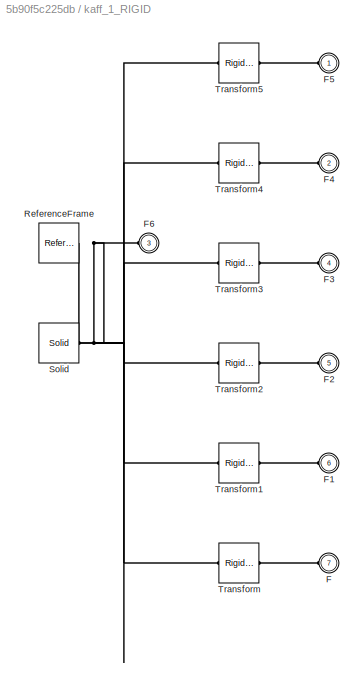
BLOCK [SubSystem] kaff_1_RIGID
  Ports = [0, 0, 0, 0, 0, 7]
  RequestExecContextInheritance = off
BLOCK [PMIOPort] kaff_1_RIGID/F
  Port = 7
  Side = Left
BLOCK [PMIOPort] kaff_1_RIGID/F1
  Port = 6
  Side = Left
BLOCK [PMIOPort] kaff_1_RIGID/F2
  Port = 5
  Side = Left
BLOCK [PMIOPort] kaff_1_RIGID/F3
  Port = 4
  Side = Left
BLOCK [PMIOPort] kaff_1_RIGID/F4
  Port = 2
  Side = Left
BLOCK [PMIOPort] kaff_1_RIGID/F5
  Side = Left
BLOCK [PMIOPort] kaff_1_RIGID/F6
  Port = 3
  Side = Left
BLOCK [Reference] kaff_1_RIGID/ReferenceFrame  REF=sm_lib/Frames and
Transforms/Reference
Frame
  Ports = [0, 0, 0, 0, 0, 0, 1]
  SourceBlock = sm_lib/Frames and\nTransforms/Reference\nFrame
  SourceProductBaseCode = MS
  SourceProductName = Simscape Multibody
  SourceType = Reference\nFrame
BLOCK [Reference] kaff_1_RIGID/Solid  REF=sm_lib/Body Elements/Solid
  Ports = [0, 0, 0, 0, 0, 0, 1]
  SourceBlock = sm_lib/Body Elements/Solid
  SourceProductBaseCode = MS
  SourceProductName = Simscape Multibody
  SourceType = Solid
BLOCK [Reference] kaff_1_RIGID/Transform  REF=sm_lib/Frames and
Transforms/Rigid
Transform
  Ports = [0, 0, 0, 0, 0, 1, 1]
  SourceBlock = sm_lib/Frames and\nTransforms/Rigid\nTransform
  SourceProductBaseCode = MS
  SourceProductName = Simscape Multibody
  SourceType = Rigid\nTransform
BLOCK [Reference] kaff_1_RIGID/Transform1  REF=sm_lib/Frames and
Transforms/Rigid
Transform
  Ports = [0, 0, 0, 0, 0, 1, 1]
  SourceBlock = sm_lib/Frames and\nTransforms/Rigid\nTransform
  SourceProductBaseCode = MS
  SourceProductName = Simscape Multibody
  SourceType = Rigid\nTransform
BLOCK [Reference] kaff_1_RIGID/Transform2  REF=sm_lib/Frames and
Transforms/Rigid
Transform
  Ports = [0, 0, 0, 0, 0, 1, 1]
  SourceBlock = sm_lib/Frames and\nTransforms/Rigid\nTransform
  SourceProductBaseCode = MS
  SourceProductName = Simscape Multibody
  SourceType = Rigid\nTransform
BLOCK [Reference] kaff_1_RIGID/Transform3  REF=sm_lib/Frames and
Transforms/Rigid
Transform
  Ports = [0, 0, 0, 0, 0, 1, 1]
  SourceBlock = sm_lib/Frames and\nTransforms/Rigid\nTransform
  SourceProductBaseCode = MS
  SourceProductName = Simscape Multibody
  SourceType = Rigid\nTransform
BLOCK [Reference] kaff_1_RIGID/Transform4  REF=sm_lib/Frames and
Transforms/Rigid
Transform
  Ports = [0, 0, 0, 0, 0, 1, 1]
  SourceBlock = sm_lib/Frames and\nTransforms/Rigid\nTransform
  SourceProductBaseCode = MS
  SourceProductName = Simscape Multibody
  SourceType = Rigid\nTransform
BLOCK [Reference] kaff_1_RIGID/Transform5  REF=sm_lib/Frames and
Transforms/Rigid
Transform
  Ports = [0, 0, 0, 0, 0, 1, 1]
  SourceBlock = sm_lib/Frames and\nTransforms/Rigid\nTransform
  SourceProductBaseCode = MS
  SourceProductName = Simscape Multibody
  SourceType = Rigid\nTransform
BLOCK [SubSystem] liaison1_2_RIGID
  Ports = [0, 0, 0, 0, 0, 2]
  RequestExecContextInheritance = off
BLOCK [PMIOPort] liaison1_2_RIGID/F
  Port = 2
  Side = Left
BLOCK [PMIOPort] liaison1_2_RIGID/F1
  Side = Left
BLOCK [Reference] liaison1_2_RIGID/ReferenceFrame  REF=sm_lib/Frames and
Transforms/Reference
Frame
  Ports = [0, 0, 0, 0, 0, 0, 1]
  SourceBlock = sm_lib/Frames and\nTransforms/Reference\nFrame
  SourceProductBaseCode = MS
  SourceProductName = Simscape Multibody
  SourceType = Reference\nFrame
BLOCK [Reference] liaison1_2_RIGID/Solid  REF=sm_lib/Body Elements/Solid
  Ports = [0, 0, 0, 0, 0, 0, 1]
  SourceBlock = sm_lib/Body Elements/Solid
  SourceProductBaseCode = MS
  SourceProductName = Simscape Multibody
  SourceType = Solid
BLOCK [Reference] liaison1_2_RIGID/Transform  REF=sm_lib/Frames and
Transforms/Rigid
Transform
  Ports = [0, 0, 0, 0, 0, 1, 1]
  SourceBlock = sm_lib/Frames and\nTransforms/Rigid\nTransform
  SourceProductBaseCode = MS
  SourceProductName = Simscape Multibody
  SourceType = Rigid\nTransform
BLOCK [Reference] liaison1_2_RIGID/Transform1  REF=sm_lib/Frames and
Transforms/Rigid
Transform
  Ports = [0, 0, 0, 0, 0, 1, 1]
  SourceBlock = sm_lib/Frames and\nTransforms/Rigid\nTransform
  SourceProductBaseCode = MS
  SourceProductName = Simscape Multibody
  SourceType = Rigid\nTransform
BLOCK [SubSystem] liaison2_1_RIGID
  Ports = [0, 0, 0, 0, 0, 2]
  RequestExecContextInheritance = off
BLOCK [PMIOPort] liaison2_1_RIGID/F
  Port = 2
  Side = Left
BLOCK [PMIOPort] liaison2_1_RIGID/F1
  Side = Left
BLOCK [Reference] liaison2_1_RIGID/ReferenceFrame  REF=sm_lib/Frames and
Transforms/Reference
Frame
  Ports = [0, 0, 0, 0, 0, 0, 1]
  SourceBlock = sm_lib/Frames and\nTransforms/Reference\nFrame
  SourceProductBaseCode = MS
  SourceProductName = Simscape Multibody
  SourceType = Reference\nFrame
BLOCK [Reference] liaison2_1_RIGID/Solid  REF=sm_lib/Body Elements/Solid
  Ports = [0, 0, 0, 0, 0, 0, 1]
  SourceBlock = sm_lib/Body Elements/Solid
  SourceProductBaseCode = MS
  SourceProductName = Simscape Multibody
  SourceType = Solid
BLOCK [Reference] liaison2_1_RIGID/Transform  REF=sm_lib/Frames and
Transforms/Rigid
Transform
  Ports = [0, 0, 0, 0, 0, 1, 1]
  SourceBlock = sm_lib/Frames and\nTransforms/Rigid\nTransform
  SourceProductBaseCode = MS
  SourceProductName = Simscape Multibody
  SourceType = Rigid\nTransform
BLOCK [Reference] liaison2_1_RIGID/Transform1  REF=sm_lib/Frames and
Transforms/Rigid
Transform
  Ports = [0, 0, 0, 0, 0, 1, 1]
  SourceBlock = sm_lib/Frames and\nTransforms/Rigid\nTransform
  SourceProductBaseCode = MS
  SourceProductName = Simscape Multibody
  SourceType = Rigid\nTransform
BLOCK [SubSystem] mg996R_v2_step_1_RIGID
  Ports = [0, 0, 0, 0, 0, 1, 1]
  RequestExecContextInheritance = off
BLOCK [PMIOPort] mg996R_v2_step_1_RIGID/F
  Port = 2
  Side = Right
BLOCK [PMIOPort] mg996R_v2_step_1_RIGID/F1
  Side = Left
BLOCK [Reference] mg996R_v2_step_1_RIGID/ReferenceFrame  REF=sm_lib/Frames and
Transforms/Reference
Frame
  Ports = [0, 0, 0, 0, 0, 0, 1]
  SourceBlock = sm_lib/Frames and\nTransforms/Reference\nFrame
  SourceProductBaseCode = MS
  SourceProductName = Simscape Multibody
  SourceType = Reference\nFrame
BLOCK [Reference] mg996R_v2_step_1_RIGID/Solid  REF=sm_lib/Body Elements/Solid
  Ports = [0, 0, 0, 0, 0, 0, 1]
  SourceBlock = sm_lib/Body Elements/Solid
  SourceProductBaseCode = MS
  SourceProductName = Simscape Multibody
  SourceType = Solid
BLOCK [Reference] mg996R_v2_step_1_RIGID/Transform  REF=sm_lib/Frames and
Transforms/Rigid
Transform
  Ports = [0, 0, 0, 0, 0, 1, 1]
  SourceBlock = sm_lib/Frames and\nTransforms/Rigid\nTransform
  SourceProductBaseCode = MS
  SourceProductName = Simscape Multibody
  SourceType = Rigid\nTransform
BLOCK [Reference] mg996R_v2_step_1_RIGID/Transform1  REF=sm_lib/Frames and
Transforms/Rigid
Transform
  Ports = [0, 0, 0, 0, 0, 1, 1]
  SourceBlock = sm_lib/Frames and\nTransforms/Rigid\nTransform
  SourceProductBaseCode = MS
  SourceProductName = Simscape Multibody
  SourceType = Rigid\nTransform
BLOCK [SubSystem] mg996R_v2_step_2_RIGID
  Ports = [0, 0, 0, 0, 0, 2, 1]
  RequestExecContextInheritance = off
BLOCK [PMIOPort] mg996R_v2_step_2_RIGID/F
  Port = 2
  Side = Left
BLOCK [PMIOPort] mg996R_v2_step_2_RIGID/F1
  Port = 3
  Side = Right
BLOCK [PMIOPort] mg996R_v2_step_2_RIGID/F2
  Side = Left
BLOCK [Reference] mg996R_v2_step_2_RIGID/ReferenceFrame  REF=sm_lib/Frames and
Transforms/Reference
Frame
  Ports = [0, 0, 0, 0, 0, 0, 1]
  SourceBlock = sm_lib/Frames and\nTransforms/Reference\nFrame
  SourceProductBaseCode = MS
  SourceProductName = Simscape Multibody
  SourceType = Reference\nFrame
BLOCK [Reference] mg996R_v2_step_2_RIGID/Solid  REF=sm_lib/Body Elements/Solid
  Ports = [0, 0, 0, 0, 0, 0, 1]
  SourceBlock = sm_lib/Body Elements/Solid
  SourceProductBaseCode = MS
  SourceProductName = Simscape Multibody
  SourceType = Solid
BLOCK [Reference] mg996R_v2_step_2_RIGID/Transform  REF=sm_lib/Frames and
Transforms/Rigid
Transform
  Ports = [0, 0, 0, 0, 0, 1, 1]
  SourceBlock = sm_lib/Frames and\nTransforms/Rigid\nTransform
  SourceProductBaseCode = MS
  SourceProductName = Simscape Multibody
  SourceType = Rigid\nTransform
BLOCK [Reference] mg996R_v2_step_2_RIGID/Transform1  REF=sm_lib/Frames and
Transforms/Rigid
Transform
  Ports = [0, 0, 0, 0, 0, 1, 1]
  SourceBlock = sm_lib/Frames and\nTransforms/Rigid\nTransform
  SourceProductBaseCode = MS
  SourceProductName = Simscape Multibody
  SourceType = Rigid\nTransform
BLOCK [Reference] mg996R_v2_step_2_RIGID/Transform2  REF=sm_lib/Frames and
Transforms/Rigid
Transform
  Ports = [0, 0, 0, 0, 0, 1, 1]
  SourceBlock = sm_lib/Frames and\nTransforms/Rigid\nTransform
  SourceProductBaseCode = MS
  SourceProductName = Simscape Multibody
  SourceType = Rigid\nTransform
BLOCK [SubSystem] mg996_arm_2pad_step_1_RIGID
  Ports = [0, 0, 0, 0, 0, 1, 1]
  RequestExecContextInheritance = off
BLOCK [PMIOPort] mg996_arm_2pad_step_1_RIGID/F
  Side = Left
BLOCK [PMIOPort] mg996_arm_2pad_step_1_RIGID/F1
  Port = 2
  Side = Right
BLOCK [Reference] mg996_arm_2pad_step_1_RIGID/ReferenceFrame  REF=sm_lib/Frames and
Transforms/Reference
Frame
  Ports = [0, 0, 0, 0, 0, 0, 1]
  SourceBlock = sm_lib/Frames and\nTransforms/Reference\nFrame
  SourceProductBaseCode = MS
  SourceProductName = Simscape Multibody
  SourceType = Reference\nFrame
BLOCK [Reference] mg996_arm_2pad_step_1_RIGID/Solid  REF=sm_lib/Body Elements/Solid
  Ports = [0, 0, 0, 0, 0, 0, 1]
  SourceBlock = sm_lib/Body Elements/Solid
  SourceProductBaseCode = MS
  SourceProductName = Simscape Multibody
  SourceType = Solid
BLOCK [Reference] mg996_arm_2pad_step_1_RIGID/Transform  REF=sm_lib/Frames and
Transforms/Rigid
Transform
  Ports = [0, 0, 0, 0, 0, 1, 1]
  SourceBlock = sm_lib/Frames and\nTransforms/Rigid\nTransform
  SourceProductBaseCode = MS
  SourceProductName = Simscape Multibody
  SourceType = Rigid\nTransform
BLOCK [Reference] mg996_arm_2pad_step_1_RIGID/Transform1  REF=sm_lib/Frames and
Transforms/Rigid
Transform
  Ports = [0, 0, 0, 0, 0, 1, 1]
  SourceBlock = sm_lib/Frames and\nTransforms/Rigid\nTransform
  SourceProductBaseCode = MS
  SourceProductName = Simscape Multibody
  SourceType = Rigid\nTransform
BLOCK [SubSystem] mg996_arm_2pad_step_2_RIGID
  Ports = [0, 0, 0, 0, 0, 1, 1]
  RequestExecContextInheritance = off
BLOCK [PMIOPort] mg996_arm_2pad_step_2_RIGID/F
  Side = Left
BLOCK [PMIOPort] mg996_arm_2pad_step_2_RIGID/F1
  Port = 2
  Side = Right
BLOCK [Reference] mg996_arm_2pad_step_2_RIGID/ReferenceFrame  REF=sm_lib/Frames and
Transforms/Reference
Frame
  Ports = [0, 0, 0, 0, 0, 0, 1]
  SourceBlock = sm_lib/Frames and\nTransforms/Reference\nFrame
  SourceProductBaseCode = MS
  SourceProductName = Simscape Multibody
  SourceType = Reference\nFrame
BLOCK [Reference] mg996_arm_2pad_step_2_RIGID/Solid  REF=sm_lib/Body Elements/Solid
  Ports = [0, 0, 0, 0, 0, 0, 1]
  SourceBlock = sm_lib/Body Elements/Solid
  SourceProductBaseCode = MS
  SourceProductName = Simscape Multibody
  SourceType = Solid
BLOCK [Reference] mg996_arm_2pad_step_2_RIGID/Transform  REF=sm_lib/Frames and
Transforms/Rigid
Transform
  Ports = [0, 0, 0, 0, 0, 1, 1]
  SourceBlock = sm_lib/Frames and\nTransforms/Rigid\nTransform
  SourceProductBaseCode = MS
  SourceProductName = Simscape Multibody
  SourceType = Rigid\nTransform
BLOCK [Reference] mg996_arm_2pad_step_2_RIGID/Transform1  REF=sm_lib/Frames and
Transforms/Rigid
Transform
  Ports = [0, 0, 0, 0, 0, 1, 1]
  SourceBlock = sm_lib/Frames and\nTransforms/Rigid\nTransform
  SourceProductBaseCode = MS
  SourceProductName = Simscape Multibody
  SourceType = Rigid\nTransform
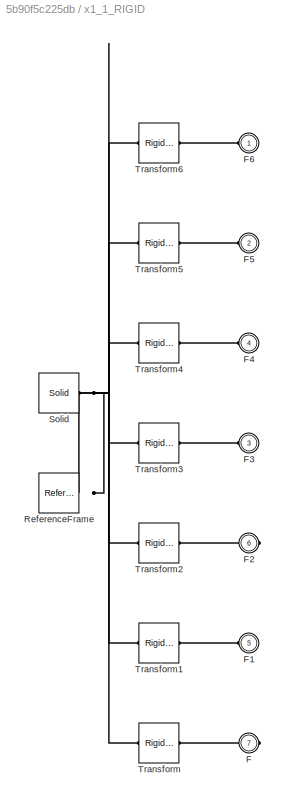
BLOCK [SubSystem] x1_1_RIGID
  Ports = [0, 0, 0, 0, 0, 5, 2]
  RequestExecContextInheritance = off
BLOCK [PMIOPort] x1_1_RIGID/F
  Port = 7
  Side = Right
BLOCK [PMIOPort] x1_1_RIGID/F1
  Port = 5
  Side = Left
BLOCK [PMIOPort] x1_1_RIGID/F2
  Port = 6
  Side = Right
BLOCK [PMIOPort] x1_1_RIGID/F3
  Port = 3
  Side = Left
BLOCK [PMIOPort] x1_1_RIGID/F4
  Port = 4
  Side = Left
BLOCK [PMIOPort] x1_1_RIGID/F5
  Port = 2
  Side = Left
BLOCK [PMIOPort] x1_1_RIGID/F6
  Side = Left
BLOCK [Reference] x1_1_RIGID/ReferenceFrame  REF=sm_lib/Frames and
Transforms/Reference
Frame
  Ports = [0, 0, 0, 0, 0, 0, 1]
  SourceBlock = sm_lib/Frames and\nTransforms/Reference\nFrame
  SourceProductBaseCode = MS
  SourceProductName = Simscape Multibody
  SourceType = Reference\nFrame
BLOCK [Reference] x1_1_RIGID/Solid  REF=sm_lib/Body Elements/Solid
  Ports = [0, 0, 0, 0, 0, 0, 1]
  SourceBlock = sm_lib/Body Elements/Solid
  SourceProductBaseCode = MS
  SourceProductName = Simscape Multibody
  SourceType = Solid
BLOCK [Reference] x1_1_RIGID/Transform  REF=sm_lib/Frames and
Transforms/Rigid
Transform
  Ports = [0, 0, 0, 0, 0, 1, 1]
  SourceBlock = sm_lib/Frames and\nTransforms/Rigid\nTransform
  SourceProductBaseCode = MS
  SourceProductName = Simscape Multibody
  SourceType = Rigid\nTransform
BLOCK [Reference] x1_1_RIGID/Transform1  REF=sm_lib/Frames and
Transforms/Rigid
Transform
  Ports = [0, 0, 0, 0, 0, 1, 1]
  SourceBlock = sm_lib/Frames and\nTransforms/Rigid\nTransform
  SourceProductBaseCode = MS
  SourceProductName = Simscape Multibody
  SourceType = Rigid\nTransform
BLOCK [Reference] x1_1_RIGID/Transform2  REF=sm_lib/Frames and
Transforms/Rigid
Transform
  Ports = [0, 0, 0, 0, 0, 1, 1]
  SourceBlock = sm_lib/Frames and\nTransforms/Rigid\nTransform
  SourceProductBaseCode = MS
  SourceProductName = Simscape Multibody
  SourceType = Rigid\nTransform
BLOCK [Reference] x1_1_RIGID/Transform3  REF=sm_lib/Frames and
Transforms/Rigid
Transform
  Ports = [0, 0, 0, 0, 0, 1, 1]
  SourceBlock = sm_lib/Frames and\nTransforms/Rigid\nTransform
  SourceProductBaseCode = MS
  SourceProductName = Simscape Multibody
  SourceType = Rigid\nTransform
BLOCK [Reference] x1_1_RIGID/Transform4  REF=sm_lib/Frames and
Transforms/Rigid
Transform
  Ports = [0, 0, 0, 0, 0, 1, 1]
  SourceBlock = sm_lib/Frames and\nTransforms/Rigid\nTransform
  SourceProductBaseCode = MS
  SourceProductName = Simscape Multibody
  SourceType = Rigid\nTransform
BLOCK [Reference] x1_1_RIGID/Transform5  REF=sm_lib/Frames and
Transforms/Rigid
Transform
  Ports = [0, 0, 0, 0, 0, 1, 1]
  SourceBlock = sm_lib/Frames and\nTransforms/Rigid\nTransform
  SourceProductBaseCode = MS
  SourceProductName = Simscape Multibody
  SourceType = Rigid\nTransform
BLOCK [Reference] x1_1_RIGID/Transform6  REF=sm_lib/Frames and
Transforms/Rigid
Transform
  Ports = [0, 0, 0, 0, 0, 1, 1]
  SourceBlock = sm_lib/Frames and\nTransforms/Rigid\nTransform
  SourceProductBaseCode = MS
  SourceProductName = Simscape Multibody
  SourceType = Rigid\nTransform
BLOCK [SubSystem] x2_1_RIGID
  Ports = [0, 0, 0, 0, 0, 1, 1]
  RequestExecContextInheritance = off
BLOCK [PMIOPort] x2_1_RIGID/F
  Side = Left
BLOCK [PMIOPort] x2_1_RIGID/F1
  Port = 2
  Side = Right
BLOCK [Reference] x2_1_RIGID/ReferenceFrame  REF=sm_lib/Frames and
Transforms/Reference
Frame
  Ports = [0, 0, 0, 0, 0, 0, 1]
  SourceBlock = sm_lib/Frames and\nTransforms/Reference\nFrame
  SourceProductBaseCode = MS
  SourceProductName = Simscape Multibody
  SourceType = Reference\nFrame
BLOCK [Reference] x2_1_RIGID/Solid  REF=sm_lib/Body Elements/Solid
  Ports = [0, 0, 0, 0, 0, 0, 1]
  SourceBlock = sm_lib/Body Elements/Solid
  SourceProductBaseCode = MS
  SourceProductName = Simscape Multibody
  SourceType = Solid
BLOCK [Reference] x2_1_RIGID/Transform  REF=sm_lib/Frames and
Transforms/Rigid
Transform
  Ports = [0, 0, 0, 0, 0, 1, 1]
  SourceBlock = sm_lib/Frames and\nTransforms/Rigid\nTransform
  SourceProductBaseCode = MS
  SourceProductName = Simscape Multibody
  SourceType = Rigid\nTransform
BLOCK [Reference] x2_1_RIGID/Transform1  REF=sm_lib/Frames and
Transforms/Rigid
Transform
  Ports = [0, 0, 0, 0, 0, 1, 1]
  SourceBlock = sm_lib/Frames and\nTransforms/Rigid\nTransform
  SourceProductBaseCode = MS
  SourceProductName = Simscape Multibody
  SourceType = Rigid\nTransform
BLOCK [SubSystem] x2_2_RIGID
  Ports = [0, 0, 0, 0, 0, 2, 1]
  RequestExecContextInheritance = off
BLOCK [PMIOPort] x2_2_RIGID/F
  Side = Left
BLOCK [PMIOPort] x2_2_RIGID/F1
  Port = 3
  Side = Right
BLOCK [PMIOPort] x2_2_RIGID/F2
  Port = 2
  Side = Left
BLOCK [Reference] x2_2_RIGID/ReferenceFrame  REF=sm_lib/Frames and
Transforms/Reference
Frame
  Ports = [0, 0, 0, 0, 0, 0, 1]
  SourceBlock = sm_lib/Frames and\nTransforms/Reference\nFrame
  SourceProductBaseCode = MS
  SourceProductName = Simscape Multibody
  SourceType = Reference\nFrame
BLOCK [Reference] x2_2_RIGID/Solid  REF=sm_lib/Body Elements/Solid
  Ports = [0, 0, 0, 0, 0, 0, 1]
  SourceBlock = sm_lib/Body Elements/Solid
  SourceProductBaseCode = MS
  SourceProductName = Simscape Multibody
  SourceType = Solid
BLOCK [Reference] x2_2_RIGID/Transform  REF=sm_lib/Frames and
Transforms/Rigid
Transform
  Ports = [0, 0, 0, 0, 0, 1, 1]
  SourceBlock = sm_lib/Frames and\nTransforms/Rigid\nTransform
  SourceProductBaseCode = MS
  SourceProductName = Simscape Multibody
  SourceType = Rigid\nTransform
BLOCK [Reference] x2_2_RIGID/Transform1  REF=sm_lib/Frames and
Transforms/Rigid
Transform
  Ports = [0, 0, 0, 0, 0, 1, 1]
  SourceBlock = sm_lib/Frames and\nTransforms/Rigid\nTransform
  SourceProductBaseCode = MS
  SourceProductName = Simscape Multibody
  SourceType = Rigid\nTransform
BLOCK [Reference] x2_2_RIGID/Transform2  REF=sm_lib/Frames and
Transforms/Rigid
Transform
  Ports = [0, 0, 0, 0, 0, 1, 1]
  SourceBlock = sm_lib/Frames and\nTransforms/Rigid\nTransform
  SourceProductBaseCode = MS
  SourceProductName = Simscape Multibody
  SourceType = Rigid\nTransform
BLOCK [SubSystem] x3_1_RIGID
  Ports = [0, 0, 0, 0, 0, 1]
  RequestExecContextInheritance = off
BLOCK [PMIOPort] x3_1_RIGID/F
  Side = Left
BLOCK [Reference] x3_1_RIGID/ReferenceFrame  REF=sm_lib/Frames and
Transforms/Reference
Frame
  Ports = [0, 0, 0, 0, 0, 0, 1]
  SourceBlock = sm_lib/Frames and\nTransforms/Reference\nFrame
  SourceProductBaseCode = MS
  SourceProductName = Simscape Multibody
  SourceType = Reference\nFrame
BLOCK [Reference] x3_1_RIGID/Solid  REF=sm_lib/Body Elements/Solid
  Ports = [0, 0, 0, 0, 0, 0, 1]
  SourceBlock = sm_lib/Body Elements/Solid
  SourceProductBaseCode = MS
  SourceProductName = Simscape Multibody
  SourceType = Solid
BLOCK [Reference] x3_1_RIGID/Transform  REF=sm_lib/Frames and
Transforms/Rigid
Transform
  Ports = [0, 0, 0, 0, 0, 1, 1]
  SourceBlock = sm_lib/Frames and\nTransforms/Rigid\nTransform
  SourceProductBaseCode = MS
  SourceProductName = Simscape Multibody
  SourceType = Rigid\nTransform
BLOCK [SubSystem] x3_2_RIGID
  Ports = [0, 0, 0, 0, 0, 1]
  RequestExecContextInheritance = off
BLOCK [PMIOPort] x3_2_RIGID/F
  Side = Left
BLOCK [Reference] x3_2_RIGID/ReferenceFrame  REF=sm_lib/Frames and
Transforms/Reference
Frame
  Ports = [0, 0, 0, 0, 0, 0, 1]
  SourceBlock = sm_lib/Frames and\nTransforms/Reference\nFrame
  SourceProductBaseCode = MS
  SourceProductName = Simscape Multibody
  SourceType = Reference\nFrame
BLOCK [Reference] x3_2_RIGID/Solid  REF=sm_lib/Body Elements/Solid
  Ports = [0, 0, 0, 0, 0, 0, 1]
  SourceBlock = sm_lib/Body Elements/Solid
  SourceProductBaseCode = MS
  SourceProductName = Simscape Multibody
  SourceType = Solid
BLOCK [Reference] x3_2_RIGID/Transform  REF=sm_lib/Frames and
Transforms/Rigid
Transform
  Ports = [0, 0, 0, 0, 0, 1, 1]
  SourceBlock = sm_lib/Frames and\nTransforms/Rigid\nTransform
  SourceProductBaseCode = MS
  SourceProductName = Simscape Multibody
  SourceType = Rigid\nTransform
BLOCK [SubSystem] x4_1_RIGID
  Ports = [0, 0, 0, 0, 0, 1]
  RequestExecContextInheritance = off
BLOCK [PMIOPort] x4_1_RIGID/F
  Side = Left
BLOCK [Reference] x4_1_RIGID/ReferenceFrame  REF=sm_lib/Frames and
Transforms/Reference
Frame
  Ports = [0, 0, 0, 0, 0, 0, 1]
  SourceBlock = sm_lib/Frames and\nTransforms/Reference\nFrame
  SourceProductBaseCode = MS
  SourceProductName = Simscape Multibody
  SourceType = Reference\nFrame
BLOCK [Reference] x4_1_RIGID/Solid  REF=sm_lib/Body Elements/Solid
  Ports = [0, 0, 0, 0, 0, 0, 1]
  SourceBlock = sm_lib/Body Elements/Solid
  SourceProductBaseCode = MS
  SourceProductName = Simscape Multibody
  SourceType = Solid
BLOCK [Reference] x4_1_RIGID/Transform  REF=sm_lib/Frames and
Transforms/Rigid
Transform
  Ports = [0, 0, 0, 0, 0, 1, 1]
  SourceBlock = sm_lib/Frames and\nTransforms/Rigid\nTransform
  SourceProductBaseCode = MS
  SourceProductName = Simscape Multibody
  SourceType = Rigid\nTransform
PLINE Assemsbo3_2_RIGID/F:RConn1 -- Assemsbo3_2_RIGID/Transform:RConn1
PNET net1: Assemsbo3_2_RIGID/ReferenceFrame:RConn1 -- Assemsbo3_2_RIGID/Transform1:LConn1 -- Assemsbo3_2_RIGID/Transform2:LConn1 -- Assemsbo3_2_RIGID/Transform3:LConn1 -- Assemsbo3_2_RIGID/Transform4:LConn1 -- Assemsbo3_2_RIGID/Transform5:LConn1 -- Assemsbo3_2_RIGID/Transform:LConn1
PNET net2: Assemsbo3_2_RIGID/SG90_Micro_Servo_9g_Tower_Pro_1_1_RIGID/F:RConn1 -- Assemsbo3_2_RIGID/SG90_Micro_Servo_9g_Tower_Pro_1_1_RIGID/ReferenceFrame:RConn1 -- Assemsbo3_2_RIGID/SG90_Micro_Servo_9g_Tower_Pro_1_1_RIGID/Solid:RConn1
PLINE Assemsbo3_2_RIGID/SG90_Micro_Servo_9g_Tower_Pro_1_1_RIGID:LConn1 -- Assemsbo3_2_RIGID/Transform2:RConn1
PNET net3: Assemsbo3_2_RIGID/SG90_Micro_Servo_9g_Tower_Pro_2_1_RIGID/F:RConn1 -- Assemsbo3_2_RIGID/SG90_Micro_Servo_9g_Tower_Pro_2_1_RIGID/ReferenceFrame:RConn1 -- Assemsbo3_2_RIGID/SG90_Micro_Servo_9g_Tower_Pro_2_1_RIGID/Solid:RConn1
PLINE Assemsbo3_2_RIGID/SG90_Micro_Servo_9g_Tower_Pro_2_1_RIGID:LConn1 -- Assemsbo3_2_RIGID/Transform4:RConn1
PLINE Assemsbo3_2_RIGID/Transform1:RConn1 -- Assemsbo3_2_RIGID/support_servo_1_RIGID:LConn1
PLINE Assemsbo3_2_RIGID/Transform3:RConn1 -- Assemsbo3_2_RIGID/sboo3_1_RIGID:LConn1
PLINE Assemsbo3_2_RIGID/Transform5:RConn1 -- Assemsbo3_2_RIGID/sbo3servo_1_RIGID:LConn1
PNET net4: Assemsbo3_2_RIGID/sbo3servo_1_RIGID/F:RConn1 -- Assemsbo3_2_RIGID/sbo3servo_1_RIGID/ReferenceFrame:RConn1 -- Assemsbo3_2_RIGID/sbo3servo_1_RIGID/Solid:RConn1
PNET net5: Assemsbo3_2_RIGID/sboo3_1_RIGID/F:RConn1 -- Assemsbo3_2_RIGID/sboo3_1_RIGID/ReferenceFrame:RConn1 -- Assemsbo3_2_RIGID/sboo3_1_RIGID/Solid:RConn1
PNET net6: Assemsbo3_2_RIGID/support_servo_1_RIGID/F:RConn1 -- Assemsbo3_2_RIGID/support_servo_1_RIGID/ReferenceFrame:RConn1 -- Assemsbo3_2_RIGID/support_servo_1_RIGID/Solid:RConn1
PLINE Assemsbo3_2_RIGID:LConn1 -- kaff_1_RIGID:LConn7
PLINE Assemsbo3_3/Cylindrical:LConn1 -- Assemsbo3_3/sboo3_1_RIGID:RConn1
PLINE Assemsbo3_3/Cylindrical:RConn1 -- Assemsbo3_3/sbo3servo_1_RIGID:LConn2
PLINE Assemsbo3_3/F:RConn1 -- Assemsbo3_3/support_servo_1_RIGID:LConn3
PLINE Assemsbo3_3/ReferenceFrame:RConn1 -- Assemsbo3_3/Transform:LConn1
PLINE Assemsbo3_3/Revolute1:LConn1 -- Assemsbo3_3/SG90_Micro_Servo_9g_Tower_Pro_2_1_RIGID:RConn1
PLINE Assemsbo3_3/Revolute1:RConn1 -- Assemsbo3_3/sbo3servo_1_RIGID:LConn1
PLINE Assemsbo3_3/Revolute:LConn1 -- Assemsbo3_3/support_servo_1_RIGID:RConn1
PLINE Assemsbo3_3/Revolute:RConn1 -- Assemsbo3_3/sboo3_1_RIGID:LConn1
PLINE Assemsbo3_3/SG90_Micro_Servo_9g_Tower_Pro_1_1_RIGID/F1:RConn1 -- Assemsbo3_3/SG90_Micro_Servo_9g_Tower_Pro_1_1_RIGID/Transform1:RConn1
PLINE Assemsbo3_3/SG90_Micro_Servo_9g_Tower_Pro_1_1_RIGID/F:RConn1 -- Assemsbo3_3/SG90_Micro_Servo_9g_Tower_Pro_1_1_RIGID/Transform:RConn1
PNET net7: Assemsbo3_3/SG90_Micro_Servo_9g_Tower_Pro_1_1_RIGID/ReferenceFrame:RConn1 -- Assemsbo3_3/SG90_Micro_Servo_9g_Tower_Pro_1_1_RIGID/Solid:RConn1 -- Assemsbo3_3/SG90_Micro_Servo_9g_Tower_Pro_1_1_RIGID/Transform1:LConn1 -- Assemsbo3_3/SG90_Micro_Servo_9g_Tower_Pro_1_1_RIGID/Transform:LConn1
PLINE Assemsbo3_3/SG90_Micro_Servo_9g_Tower_Pro_1_1_RIGID:LConn1 -- Assemsbo3_3/SG90_Micro_Servo_9g_Tower_Pro_2_1_RIGID:LConn1
PLINE Assemsbo3_3/SG90_Micro_Servo_9g_Tower_Pro_1_1_RIGID:LConn2 -- Assemsbo3_3/support_servo_1_RIGID:LConn1
PLINE Assemsbo3_3/SG90_Micro_Servo_9g_Tower_Pro_2_1_RIGID/F1:RConn1 -- Assemsbo3_3/SG90_Micro_Servo_9g_Tower_Pro_2_1_RIGID/Transform1:RConn1
PLINE Assemsbo3_3/SG90_Micro_Servo_9g_Tower_Pro_2_1_RIGID/F:RConn1 -- Assemsbo3_3/SG90_Micro_Servo_9g_Tower_Pro_2_1_RIGID/Transform:RConn1
PNET net8: Assemsbo3_3/SG90_Micro_Servo_9g_Tower_Pro_2_1_RIGID/ReferenceFrame:RConn1 -- Assemsbo3_3/SG90_Micro_Servo_9g_Tower_Pro_2_1_RIGID/Solid:RConn1 -- Assemsbo3_3/SG90_Micro_Servo_9g_Tower_Pro_2_1_RIGID/Transform1:LConn1 -- Assemsbo3_3/SG90_Micro_Servo_9g_Tower_Pro_2_1_RIGID/Transform:LConn1
PLINE Assemsbo3_3/Transform:RConn1 -- Assemsbo3_3/support_servo_1_RIGID:LConn2
PLINE Assemsbo3_3/sbo3servo_1_RIGID/F1:RConn1 -- Assemsbo3_3/sbo3servo_1_RIGID/Transform1:RConn1
PLINE Assemsbo3_3/sbo3servo_1_RIGID/F:RConn1 -- Assemsbo3_3/sbo3servo_1_RIGID/Transform:RConn1
PNET net9: Assemsbo3_3/sbo3servo_1_RIGID/ReferenceFrame:RConn1 -- Assemsbo3_3/sbo3servo_1_RIGID/Solid:RConn1 -- Assemsbo3_3/sbo3servo_1_RIGID/Transform1:LConn1 -- Assemsbo3_3/sbo3servo_1_RIGID/Transform:LConn1
PLINE Assemsbo3_3/sboo3_1_RIGID/F1:RConn1 -- Assemsbo3_3/sboo3_1_RIGID/Transform1:RConn1
PLINE Assemsbo3_3/sboo3_1_RIGID/F:RConn1 -- Assemsbo3_3/sboo3_1_RIGID/Transform:RConn1
PNET net10: Assemsbo3_3/sboo3_1_RIGID/ReferenceFrame:RConn1 -- Assemsbo3_3/sboo3_1_RIGID/Solid:RConn1 -- Assemsbo3_3/sboo3_1_RIGID/Transform1:LConn1 -- Assemsbo3_3/sboo3_1_RIGID/Transform:LConn1
PLINE Assemsbo3_3/support_servo_1_RIGID/F1:RConn1 -- Assemsbo3_3/support_servo_1_RIGID/Transform1:RConn1
PLINE Assemsbo3_3/support_servo_1_RIGID/F2:RConn1 -- Assemsbo3_3/support_servo_1_RIGID/Transform2:RConn1
PNET net11: Assemsbo3_3/support_servo_1_RIGID/F3:RConn1 -- Assemsbo3_3/support_servo_1_RIGID/ReferenceFrame:RConn1 -- Assemsbo3_3/support_servo_1_RIGID/Solid:RConn1 -- Assemsbo3_3/support_servo_1_RIGID/Transform1:LConn1 -- Assemsbo3_3/support_servo_1_RIGID/Transform2:LConn1 -- Assemsbo3_3/support_servo_1_RIGID/Transform:LConn1
PLINE Assemsbo3_3/support_servo_1_RIGID/F:RConn1 -- Assemsbo3_3/support_servo_1_RIGID/Transform:RConn1
PLINE Assemsbo3_3:LConn1 -- kaff_1_RIGID:LConn2
PLINE Assemsbo3_4/Cylindrical:LConn1 -- Assemsbo3_4/sboo3_1_RIGID:RConn1
PLINE Assemsbo3_4/Cylindrical:RConn1 -- Assemsbo3_4/sbo3servo_1_RIGID:LConn2
PLINE Assemsbo3_4/F:RConn1 -- Assemsbo3_4/support_servo_1_RIGID:LConn3
PLINE Assemsbo3_4/ReferenceFrame:RConn1 -- Assemsbo3_4/Transform:LConn1
PLINE Assemsbo3_4/Revolute1:LConn1 -- Assemsbo3_4/SG90_Micro_Servo_9g_Tower_Pro_2_1_RIGID:RConn1
PLINE Assemsbo3_4/Revolute1:RConn1 -- Assemsbo3_4/sbo3servo_1_RIGID:LConn1
PLINE Assemsbo3_4/Revolute:LConn1 -- Assemsbo3_4/support_servo_1_RIGID:RConn1
PLINE Assemsbo3_4/Revolute:RConn1 -- Assemsbo3_4/sboo3_1_RIGID:LConn1
PLINE Assemsbo3_4/SG90_Micro_Servo_9g_Tower_Pro_1_1_RIGID/F1:RConn1 -- Assemsbo3_4/SG90_Micro_Servo_9g_Tower_Pro_1_1_RIGID/Transform1:RConn1
PLINE Assemsbo3_4/SG90_Micro_Servo_9g_Tower_Pro_1_1_RIGID/F:RConn1 -- Assemsbo3_4/SG90_Micro_Servo_9g_Tower_Pro_1_1_RIGID/Transform:RConn1
PNET net12: Assemsbo3_4/SG90_Micro_Servo_9g_Tower_Pro_1_1_RIGID/ReferenceFrame:RConn1 -- Assemsbo3_4/SG90_Micro_Servo_9g_Tower_Pro_1_1_RIGID/Solid:RConn1 -- Assemsbo3_4/SG90_Micro_Servo_9g_Tower_Pro_1_1_RIGID/Transform1:LConn1 -- Assemsbo3_4/SG90_Micro_Servo_9g_Tower_Pro_1_1_RIGID/Transform:LConn1
PLINE Assemsbo3_4/SG90_Micro_Servo_9g_Tower_Pro_1_1_RIGID:LConn1 -- Assemsbo3_4/SG90_Micro_Servo_9g_Tower_Pro_2_1_RIGID:LConn1
PLINE Assemsbo3_4/SG90_Micro_Servo_9g_Tower_Pro_1_1_RIGID:LConn2 -- Assemsbo3_4/support_servo_1_RIGID:LConn1
PLINE Assemsbo3_4/SG90_Micro_Servo_9g_Tower_Pro_2_1_RIGID/F1:RConn1 -- Assemsbo3_4/SG90_Micro_Servo_9g_Tower_Pro_2_1_RIGID/Transform1:RConn1
PLINE Assemsbo3_4/SG90_Micro_Servo_9g_Tower_Pro_2_1_RIGID/F:RConn1 -- Assemsbo3_4/SG90_Micro_Servo_9g_Tower_Pro_2_1_RIGID/Transform:RConn1
PNET net13: Assemsbo3_4/SG90_Micro_Servo_9g_Tower_Pro_2_1_RIGID/ReferenceFrame:RConn1 -- Assemsbo3_4/SG90_Micro_Servo_9g_Tower_Pro_2_1_RIGID/Solid:RConn1 -- Assemsbo3_4/SG90_Micro_Servo_9g_Tower_Pro_2_1_RIGID/Transform1:LConn1 -- Assemsbo3_4/SG90_Micro_Servo_9g_Tower_Pro_2_1_RIGID/Transform:LConn1
PLINE Assemsbo3_4/Transform:RConn1 -- Assemsbo3_4/support_servo_1_RIGID:LConn2
PLINE Assemsbo3_4/sbo3servo_1_RIGID/F1:RConn1 -- Assemsbo3_4/sbo3servo_1_RIGID/Transform1:RConn1
PLINE Assemsbo3_4/sbo3servo_1_RIGID/F:RConn1 -- Assemsbo3_4/sbo3servo_1_RIGID/Transform:RConn1
PNET net14: Assemsbo3_4/sbo3servo_1_RIGID/ReferenceFrame:RConn1 -- Assemsbo3_4/sbo3servo_1_RIGID/Solid:RConn1 -- Assemsbo3_4/sbo3servo_1_RIGID/Transform1:LConn1 -- Assemsbo3_4/sbo3servo_1_RIGID/Transform:LConn1
PLINE Assemsbo3_4/sboo3_1_RIGID/F1:RConn1 -- Assemsbo3_4/sboo3_1_RIGID/Transform1:RConn1
PLINE Assemsbo3_4/sboo3_1_RIGID/F:RConn1 -- Assemsbo3_4/sboo3_1_RIGID/Transform:RConn1
PNET net15: Assemsbo3_4/sboo3_1_RIGID/ReferenceFrame:RConn1 -- Assemsbo3_4/sboo3_1_RIGID/Solid:RConn1 -- Assemsbo3_4/sboo3_1_RIGID/Transform1:LConn1 -- Assemsbo3_4/sboo3_1_RIGID/Transform:LConn1
PLINE Assemsbo3_4/support_servo_1_RIGID/F1:RConn1 -- Assemsbo3_4/support_servo_1_RIGID/Transform1:RConn1
PLINE Assemsbo3_4/support_servo_1_RIGID/F2:RConn1 -- Assemsbo3_4/support_servo_1_RIGID/Transform2:RConn1
PNET net16: Assemsbo3_4/support_servo_1_RIGID/F3:RConn1 -- Assemsbo3_4/support_servo_1_RIGID/ReferenceFrame:RConn1 -- Assemsbo3_4/support_servo_1_RIGID/Solid:RConn1 -- Assemsbo3_4/support_servo_1_RIGID/Transform1:LConn1 -- Assemsbo3_4/support_servo_1_RIGID/Transform2:LConn1 -- Assemsbo3_4/support_servo_1_RIGID/Transform:LConn1
PLINE Assemsbo3_4/support_servo_1_RIGID/F:RConn1 -- Assemsbo3_4/support_servo_1_RIGID/Transform:RConn1
PLINE Assemsbo3_4:LConn1 -- kaff_1_RIGID:LConn4
PLINE Assemsbo3_5_RIGID/F:RConn1 -- Assemsbo3_5_RIGID/Transform:RConn1
PNET net17: Assemsbo3_5_RIGID/ReferenceFrame:RConn1 -- Assemsbo3_5_RIGID/Transform1:LConn1 -- Assemsbo3_5_RIGID/Transform2:LConn1 -- Assemsbo3_5_RIGID/Transform3:LConn1 -- Assemsbo3_5_RIGID/Transform4:LConn1 -- Assemsbo3_5_RIGID/Transform5:LConn1 -- Assemsbo3_5_RIGID/Transform:LConn1
PNET net18: Assemsbo3_5_RIGID/SG90_Micro_Servo_9g_Tower_Pro_1_1_RIGID/F:RConn1 -- Assemsbo3_5_RIGID/SG90_Micro_Servo_9g_Tower_Pro_1_1_RIGID/ReferenceFrame:RConn1 -- Assemsbo3_5_RIGID/SG90_Micro_Servo_9g_Tower_Pro_1_1_RIGID/Solid:RConn1
PLINE Assemsbo3_5_RIGID/SG90_Micro_Servo_9g_Tower_Pro_1_1_RIGID:LConn1 -- Assemsbo3_5_RIGID/Transform2:RConn1
PNET net19: Assemsbo3_5_RIGID/SG90_Micro_Servo_9g_Tower_Pro_2_1_RIGID/F:RConn1 -- Assemsbo3_5_RIGID/SG90_Micro_Servo_9g_Tower_Pro_2_1_RIGID/ReferenceFrame:RConn1 -- Assemsbo3_5_RIGID/SG90_Micro_Servo_9g_Tower_Pro_2_1_RIGID/Solid:RConn1
PLINE Assemsbo3_5_RIGID/SG90_Micro_Servo_9g_Tower_Pro_2_1_RIGID:LConn1 -- Assemsbo3_5_RIGID/Transform4:RConn1
PLINE Assemsbo3_5_RIGID/Transform1:RConn1 -- Assemsbo3_5_RIGID/support_servo_1_RIGID:LConn1
PLINE Assemsbo3_5_RIGID/Transform3:RConn1 -- Assemsbo3_5_RIGID/sboo3_1_RIGID:LConn1
PLINE Assemsbo3_5_RIGID/Transform5:RConn1 -- Assemsbo3_5_RIGID/sbo3servo_1_RIGID:LConn1
PNET net20: Assemsbo3_5_RIGID/sbo3servo_1_RIGID/F:RConn1 -- Assemsbo3_5_RIGID/sbo3servo_1_RIGID/ReferenceFrame:RConn1 -- Assemsbo3_5_RIGID/sbo3servo_1_RIGID/Solid:RConn1
PNET net21: Assemsbo3_5_RIGID/sboo3_1_RIGID/F:RConn1 -- Assemsbo3_5_RIGID/sboo3_1_RIGID/ReferenceFrame:RConn1 -- Assemsbo3_5_RIGID/sboo3_1_RIGID/Solid:RConn1
PNET net22: Assemsbo3_5_RIGID/support_servo_1_RIGID/F:RConn1 -- Assemsbo3_5_RIGID/support_servo_1_RIGID/ReferenceFrame:RConn1 -- Assemsbo3_5_RIGID/support_servo_1_RIGID/Solid:RConn1
PLINE Assemsbo3_5_RIGID:LConn1 -- kaff_1_RIGID:LConn6
PLINE Assemsbo3_6_RIGID/F:RConn1 -- Assemsbo3_6_RIGID/Transform:RConn1
PNET net23: Assemsbo3_6_RIGID/ReferenceFrame:RConn1 -- Assemsbo3_6_RIGID/Transform1:LConn1 -- Assemsbo3_6_RIGID/Transform2:LConn1 -- Assemsbo3_6_RIGID/Transform3:LConn1 -- Assemsbo3_6_RIGID/Transform4:LConn1 -- Assemsbo3_6_RIGID/Transform5:LConn1 -- Assemsbo3_6_RIGID/Transform:LConn1
PNET net24: Assemsbo3_6_RIGID/SG90_Micro_Servo_9g_Tower_Pro_1_1_RIGID/F:RConn1 -- Assemsbo3_6_RIGID/SG90_Micro_Servo_9g_Tower_Pro_1_1_RIGID/ReferenceFrame:RConn1 -- Assemsbo3_6_RIGID/SG90_Micro_Servo_9g_Tower_Pro_1_1_RIGID/Solid:RConn1
PLINE Assemsbo3_6_RIGID/SG90_Micro_Servo_9g_Tower_Pro_1_1_RIGID:LConn1 -- Assemsbo3_6_RIGID/Transform2:RConn1
PNET net25: Assemsbo3_6_RIGID/SG90_Micro_Servo_9g_Tower_Pro_2_1_RIGID/F:RConn1 -- Assemsbo3_6_RIGID/SG90_Micro_Servo_9g_Tower_Pro_2_1_RIGID/ReferenceFrame:RConn1 -- Assemsbo3_6_RIGID/SG90_Micro_Servo_9g_Tower_Pro_2_1_RIGID/Solid:RConn1
PLINE Assemsbo3_6_RIGID/SG90_Micro_Servo_9g_Tower_Pro_2_1_RIGID:LConn1 -- Assemsbo3_6_RIGID/Transform4:RConn1
PLINE Assemsbo3_6_RIGID/Transform1:RConn1 -- Assemsbo3_6_RIGID/support_servo_1_RIGID:LConn1
PLINE Assemsbo3_6_RIGID/Transform3:RConn1 -- Assemsbo3_6_RIGID/sboo3_1_RIGID:LConn1
PLINE Assemsbo3_6_RIGID/Transform5:RConn1 -- Assemsbo3_6_RIGID/sbo3servo_1_RIGID:LConn1
PNET net26: Assemsbo3_6_RIGID/sbo3servo_1_RIGID/F:RConn1 -- Assemsbo3_6_RIGID/sbo3servo_1_RIGID/ReferenceFrame:RConn1 -- Assemsbo3_6_RIGID/sbo3servo_1_RIGID/Solid:RConn1
PNET net27: Assemsbo3_6_RIGID/sboo3_1_RIGID/F:RConn1 -- Assemsbo3_6_RIGID/sboo3_1_RIGID/ReferenceFrame:RConn1 -- Assemsbo3_6_RIGID/sboo3_1_RIGID/Solid:RConn1
PNET net28: Assemsbo3_6_RIGID/support_servo_1_RIGID/F:RConn1 -- Assemsbo3_6_RIGID/support_servo_1_RIGID/ReferenceFrame:RConn1 -- Assemsbo3_6_RIGID/support_servo_1_RIGID/Solid:RConn1
PLINE Assemsbo3_6_RIGID:LConn1 -- kaff_1_RIGID:LConn5
PLINE Cylindrical1:LConn1 -- chtar_yed_1_RIGID:RConn1
PLINE Cylindrical1:RConn1 -- liaison2_1_RIGID:LConn1
PLINE Cylindrical:LConn1 -- mg996_arm_2pad_step_1_RIGID:RConn1
PLINE Cylindrical:RConn1 -- liaison1_2_RIGID:LConn2
PNET net29: MechanismConfiguration:RConn1 -- Solver Configuration:RConn1 -- Transform1:LConn1 -- Transform2:LConn1 -- Transform3:LConn1 -- Transform4:LConn1 -- Transform5:LConn1 -- Transform:LConn1 -- World:RConn1
PLINE Planar:LConn1 -- x2_1_RIGID:RConn1
PLINE Planar:RConn1 -- Transform2:RConn1
PLINE Prismatic1:LConn1 -- x2_2_RIGID:RConn1
PLINE Prismatic1:RConn1 -- Transform3:RConn1
PLINE Prismatic:LConn1 -- Transform:RConn1
PLINE Prismatic:RConn1 -- mg996R_v2_step_2_RIGID:LConn2
PLINE Revolute1:LConn1 -- mg996R_v2_step_2_RIGID:RConn1
PLINE Revolute1:RConn1 -- mg996_arm_2pad_step_2_RIGID:LConn1
PLINE Revolute2:LConn1 -- mg996_arm_2pad_step_2_RIGID:RConn1
PLINE Revolute2:RConn1 -- liaison2_1_RIGID:LConn2
PLINE Revolute3:LConn1 -- chtar_yed_1_RIGID:RConn2
PLINE Revolute3:RConn1 -- chtar_theni_2_RIGID:LConn1
PLINE Revolute4:LConn1 -- x1_1_RIGID:RConn2
PLINE Revolute4:RConn1 -- Transform1:RConn1
PLINE Revolute5:LConn1 -- chtar_theni_2_RIGID:RConn1
PLINE Revolute5:RConn1 -- x1_1_RIGID:LConn5
PLINE Revolute6:LConn1 -- x1_1_RIGID:RConn1
PLINE Revolute6:RConn1 -- Stepper_motor_Nema_17_17HS2408_step_1_RIGID:LConn1
PLINE Revolute7:LConn1 -- cagefou9_1_RIGID:RConn2
PLINE Revolute7:RConn1 -- liaison1_2_RIGID:LConn1
PLINE Revolute8:LConn1 -- cagefou9_1_RIGID:RConn1
PLINE Revolute8:RConn1 -- chtar_yed_1_RIGID:LConn1
PLINE Revolute:LConn1 -- mg996R_v2_step_1_RIGID:RConn1
PLINE Revolute:RConn1 -- mg996_arm_2pad_step_1_RIGID:LConn1
PLINE Stepper_motor_Nema_17_17HS2408_step_1_RIGID/F:RConn1 -- Stepper_motor_Nema_17_17HS2408_step_1_RIGID/Transform:RConn1
PNET net30: Stepper_motor_Nema_17_17HS2408_step_1_RIGID/ReferenceFrame:RConn1 -- Stepper_motor_Nema_17_17HS2408_step_1_RIGID/Solid:RConn1 -- Stepper_motor_Nema_17_17HS2408_step_1_RIGID/Transform:LConn1
PLINE Transform4:RConn1 -- chtar_yed_1_RIGID:LConn3
PLINE Transform5:RConn1 -- kaff_1_RIGID:LConn3
PLINE cagefou9_1_RIGID/F1:RConn1 -- cagefou9_1_RIGID/Transform1:RConn1
PLINE cagefou9_1_RIGID/F2:RConn1 -- cagefou9_1_RIGID/Transform2:RConn1
PLINE cagefou9_1_RIGID/F:RConn1 -- cagefou9_1_RIGID/Transform:RConn1
PNET net31: cagefou9_1_RIGID/ReferenceFrame:RConn1 -- cagefou9_1_RIGID/Solid:RConn1 -- cagefou9_1_RIGID/Transform1:LConn1 -- cagefou9_1_RIGID/Transform2:LConn1 -- cagefou9_1_RIGID/Transform:LConn1
PLINE cagefou9_1_RIGID:LConn1 -- kaff_1_RIGID:LConn1
PLINE chtar_theni_2_RIGID/F1:RConn1 -- chtar_theni_2_RIGID/Transform1:RConn1
PLINE chtar_theni_2_RIGID/F2:RConn1 -- chtar_theni_2_RIGID/Transform2:RConn1
PLINE chtar_theni_2_RIGID/F:RConn1 -- chtar_theni_2_RIGID/Transform:RConn1
PNET net32: chtar_theni_2_RIGID/ReferenceFrame:RConn1 -- chtar_theni_2_RIGID/Solid:RConn1 -- chtar_theni_2_RIGID/Transform1:LConn1 -- chtar_theni_2_RIGID/Transform2:LConn1 -- chtar_theni_2_RIGID/Transform:LConn1
PLINE chtar_theni_2_RIGID:LConn2 -- mg996R_v2_step_2_RIGID:LConn1
PLINE chtar_yed_1_RIGID/F1:RConn1 -- chtar_yed_1_RIGID/Transform1:RConn1
PLINE chtar_yed_1_RIGID/F2:RConn1 -- chtar_yed_1_RIGID/Transform2:RConn1
PLINE chtar_yed_1_RIGID/F3:RConn1 -- chtar_yed_1_RIGID/Transform3:RConn1
PLINE chtar_yed_1_RIGID/F4:RConn1 -- chtar_yed_1_RIGID/Transform4:RConn1
PLINE chtar_yed_1_RIGID/F:RConn1 -- chtar_yed_1_RIGID/Transform:RConn1
PNET net33: chtar_yed_1_RIGID/ReferenceFrame:RConn1 -- chtar_yed_1_RIGID/Solid:RConn1 -- chtar_yed_1_RIGID/Transform1:LConn1 -- chtar_yed_1_RIGID/Transform2:LConn1 -- chtar_yed_1_RIGID/Transform3:LConn1 -- chtar_yed_1_RIGID/Transform4:LConn1 -- chtar_yed_1_RIGID/Transform:LConn1
PLINE chtar_yed_1_RIGID:LConn2 -- mg996R_v2_step_1_RIGID:LConn1
PLINE kaff_1_RIGID/F1:RConn1 -- kaff_1_RIGID/Transform1:RConn1
PLINE kaff_1_RIGID/F2:RConn1 -- kaff_1_RIGID/Transform2:RConn1
PLINE kaff_1_RIGID/F3:RConn1 -- kaff_1_RIGID/Transform3:RConn1
PLINE kaff_1_RIGID/F4:RConn1 -- kaff_1_RIGID/Transform4:RConn1
PLINE kaff_1_RIGID/F5:RConn1 -- kaff_1_RIGID/Transform5:RConn1
PNET net34: kaff_1_RIGID/F6:RConn1 -- kaff_1_RIGID/ReferenceFrame:RConn1 -- kaff_1_RIGID/Solid:RConn1 -- kaff_1_RIGID/Transform1:LConn1 -- kaff_1_RIGID/Transform2:LConn1 -- kaff_1_RIGID/Transform3:LConn1 -- kaff_1_RIGID/Transform4:LConn1 -- kaff_1_RIGID/Transform5:LConn1 -- kaff_1_RIGID/Transform:LConn1
PLINE kaff_1_RIGID/F:RConn1 -- kaff_1_RIGID/Transform:RConn1
PLINE liaison1_2_RIGID/F1:RConn1 -- liaison1_2_RIGID/Transform1:RConn1
PLINE liaison1_2_RIGID/F:RConn1 -- liaison1_2_RIGID/Transform:RConn1
PNET net35: liaison1_2_RIGID/ReferenceFrame:RConn1 -- liaison1_2_RIGID/Solid:RConn1 -- liaison1_2_RIGID/Transform1:LConn1 -- liaison1_2_RIGID/Transform:LConn1
PLINE liaison2_1_RIGID/F1:RConn1 -- liaison2_1_RIGID/Transform1:RConn1
PLINE liaison2_1_RIGID/F:RConn1 -- liaison2_1_RIGID/Transform:RConn1
PNET net36: liaison2_1_RIGID/ReferenceFrame:RConn1 -- liaison2_1_RIGID/Solid:RConn1 -- liaison2_1_RIGID/Transform1:LConn1 -- liaison2_1_RIGID/Transform:LConn1
PLINE mg996R_v2_step_1_RIGID/F1:RConn1 -- mg996R_v2_step_1_RIGID/Transform1:RConn1
PLINE mg996R_v2_step_1_RIGID/F:RConn1 -- mg996R_v2_step_1_RIGID/Transform:RConn1
PNET net37: mg996R_v2_step_1_RIGID/ReferenceFrame:RConn1 -- mg996R_v2_step_1_RIGID/Solid:RConn1 -- mg996R_v2_step_1_RIGID/Transform1:LConn1 -- mg996R_v2_step_1_RIGID/Transform:LConn1
PLINE mg996R_v2_step_2_RIGID/F1:RConn1 -- mg996R_v2_step_2_RIGID/Transform1:RConn1
PLINE mg996R_v2_step_2_RIGID/F2:RConn1 -- mg996R_v2_step_2_RIGID/Transform2:RConn1
PLINE mg996R_v2_step_2_RIGID/F:RConn1 -- mg996R_v2_step_2_RIGID/Transform:RConn1
PNET net38: mg996R_v2_step_2_RIGID/ReferenceFrame:RConn1 -- mg996R_v2_step_2_RIGID/Solid:RConn1 -- mg996R_v2_step_2_RIGID/Transform1:LConn1 -- mg996R_v2_step_2_RIGID/Transform2:LConn1 -- mg996R_v2_step_2_RIGID/Transform:LConn1
PLINE mg996_arm_2pad_step_1_RIGID/F1:RConn1 -- mg996_arm_2pad_step_1_RIGID/Transform1:RConn1
PLINE mg996_arm_2pad_step_1_RIGID/F:RConn1 -- mg996_arm_2pad_step_1_RIGID/Transform:RConn1
PNET net39: mg996_arm_2pad_step_1_RIGID/ReferenceFrame:RConn1 -- mg996_arm_2pad_step_1_RIGID/Solid:RConn1 -- mg996_arm_2pad_step_1_RIGID/Transform1:LConn1 -- mg996_arm_2pad_step_1_RIGID/Transform:LConn1
PLINE mg996_arm_2pad_step_2_RIGID/F1:RConn1 -- mg996_arm_2pad_step_2_RIGID/Transform1:RConn1
PLINE mg996_arm_2pad_step_2_RIGID/F:RConn1 -- mg996_arm_2pad_step_2_RIGID/Transform:RConn1
PNET net40: mg996_arm_2pad_step_2_RIGID/ReferenceFrame:RConn1 -- mg996_arm_2pad_step_2_RIGID/Solid:RConn1 -- mg996_arm_2pad_step_2_RIGID/Transform1:LConn1 -- mg996_arm_2pad_step_2_RIGID/Transform:LConn1
PLINE x1_1_RIGID/F1:RConn1 -- x1_1_RIGID/Transform1:RConn1
PLINE x1_1_RIGID/F2:RConn1 -- x1_1_RIGID/Transform2:RConn1
PLINE x1_1_RIGID/F3:RConn1 -- x1_1_RIGID/Transform3:RConn1
PLINE x1_1_RIGID/F4:RConn1 -- x1_1_RIGID/Transform4:RConn1
PLINE x1_1_RIGID/F5:RConn1 -- x1_1_RIGID/Transform5:RConn1
PLINE x1_1_RIGID/F6:RConn1 -- x1_1_RIGID/Transform6:RConn1
PLINE x1_1_RIGID/F:RConn1 -- x1_1_RIGID/Transform:RConn1
PNET net41: x1_1_RIGID/ReferenceFrame:RConn1 -- x1_1_RIGID/Solid:RConn1 -- x1_1_RIGID/Transform1:LConn1 -- x1_1_RIGID/Transform2:LConn1 -- x1_1_RIGID/Transform3:LConn1 -- x1_1_RIGID/Transform4:LConn1 -- x1_1_RIGID/Transform5:LConn1 -- x1_1_RIGID/Transform6:LConn1 -- x1_1_RIGID/Transform:LConn1
PLINE x1_1_RIGID:LConn1 -- x3_2_RIGID:LConn1
PLINE x1_1_RIGID:LConn2 -- x3_1_RIGID:LConn1
PLINE x1_1_RIGID:LConn3 -- x2_1_RIGID:LConn1
PLINE x1_1_RIGID:LConn4 -- x2_2_RIGID:LConn1
PLINE x2_1_RIGID/F1:RConn1 -- x2_1_RIGID/Transform1:RConn1
PLINE x2_1_RIGID/F:RConn1 -- x2_1_RIGID/Transform:RConn1
PNET net42: x2_1_RIGID/ReferenceFrame:RConn1 -- x2_1_RIGID/Solid:RConn1 -- x2_1_RIGID/Transform1:LConn1 -- x2_1_RIGID/Transform:LConn1
PLINE x2_2_RIGID/F1:RConn1 -- x2_2_RIGID/Transform1:RConn1
PLINE x2_2_RIGID/F2:RConn1 -- x2_2_RIGID/Transform2:RConn1
PLINE x2_2_RIGID/F:RConn1 -- x2_2_RIGID/Transform:RConn1
PNET net43: x2_2_RIGID/ReferenceFrame:RConn1 -- x2_2_RIGID/Solid:RConn1 -- x2_2_RIGID/Transform1:LConn1 -- x2_2_RIGID/Transform2:LConn1 -- x2_2_RIGID/Transform:LConn1
PLINE x2_2_RIGID:LConn2 -- x4_1_RIGID:LConn1
PLINE x3_1_RIGID/F:RConn1 -- x3_1_RIGID/Transform:RConn1
PNET net44: x3_1_RIGID/ReferenceFrame:RConn1 -- x3_1_RIGID/Solid:RConn1 -- x3_1_RIGID/Transform:LConn1
PLINE x3_2_RIGID/F:RConn1 -- x3_2_RIGID/Transform:RConn1
PNET net45: x3_2_RIGID/ReferenceFrame:RConn1 -- x3_2_RIGID/Solid:RConn1 -- x3_2_RIGID/Transform:LConn1
PLINE x4_1_RIGID/F:RConn1 -- x4_1_RIGID/Transform:RConn1
PNET net46: x4_1_RIGID/ReferenceFrame:RConn1 -- x4_1_RIGID/Solid:RConn1 -- x4_1_RIGID/Transform:LConn1
note: PNET lines group multi-terminal physical nets as a canonical sorted terminal list (undirected conserving connections); 2-terminal nets keep the pairwise PLINE form
